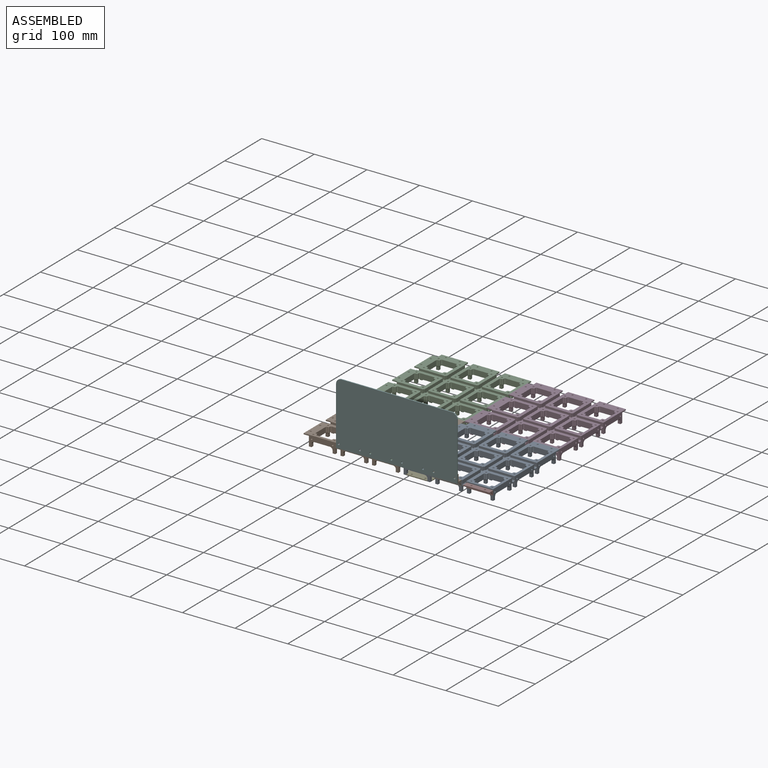
[diagram: assembled view]
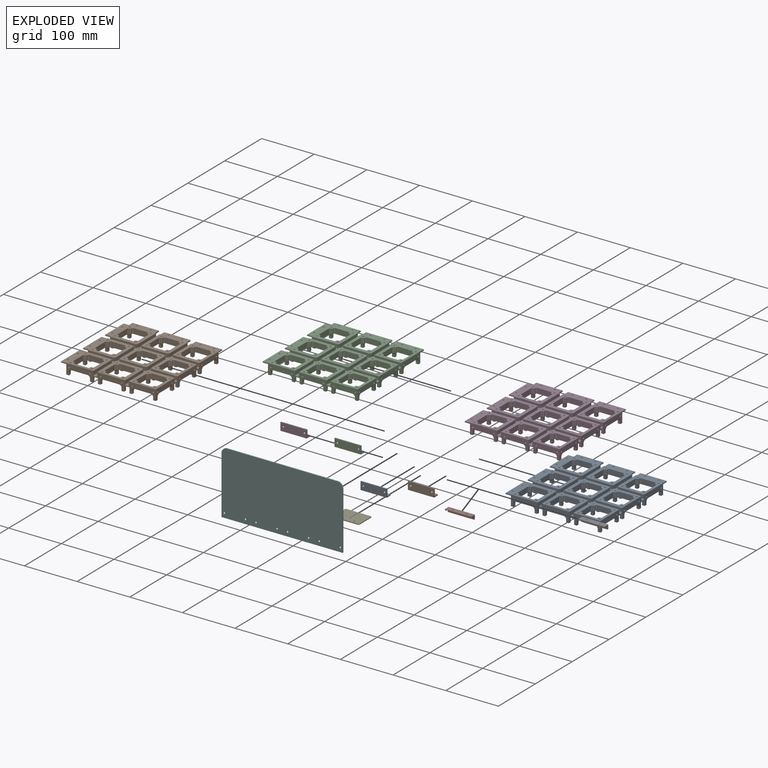
[diagram: exploded view]
GUIDED TOUR — FREECAD ASSEMBLY "BackplaneAssembled"

This assembly has 12 components, labeled P0..P11 below (a component is one placed body or linked part; the same part can appear more than once), held together by 0 modeled joints plus 27 derived contact edges. A joint is a constraint between two components; its type names the relative motion it leaves free:
  CONTACT — a derived adjacency edge — the two components touch in the source model (clearance under 2% of the assembly's diagonal); it is measured from the geometry, not a modeled constraint.
Axis/direction vectors are unit vectors and 'through' points are millimeter coordinates, both in the assembly's world frame.

MATES
  1. CONTACT "contact_0_1": P0 <-> P1, contact direction (1.000, 0.000, 0.000) through (55.00, -10.00, 18.00) mm (derived from contact, not a modeled constraint)
  2. CONTACT "contact_0_2": P0 <-> P2, contact direction (-1.000, 0.000, 0.000) through (-5.00, -10.00, 18.00) mm (derived from contact, not a modeled constraint)
  3. CONTACT "contact_0_5": P0 <-> P5, contact direction (0.000, -1.000, 0.000) through (5.73, -10.00, 24.52) mm (derived from contact, not a modeled constraint)
  4. CONTACT "contact_0_6": P0 <-> P6, contact direction (1.000, 0.000, 0.000) through (55.00, -10.00, 18.00) mm (derived from contact, not a modeled constraint)
  5. CONTACT "contact_0_8": P0 <-> P8, contact direction (0.000, 1.000, 0.000) through (0.00, 0.00, 18.00) mm (derived from contact, not a modeled constraint)
  6. CONTACT "contact_0_9": P0 <-> P9, contact direction (-1.000, 0.000, 0.000) through (-5.00, 0.00, 20.00) mm (derived from contact, not a modeled constraint)
  7. CONTACT "contact_1_5": P1 <-> P5, contact direction (0.000, -1.000, 0.000) through (110.00, -10.00, 18.00) mm (derived from contact, not a modeled constraint)
  8. CONTACT "contact_1_6": P1 <-> P6, contact direction (0.000, 0.000, -1.000) through (110.00, -10.00, 18.00) mm (derived from contact, not a modeled constraint)
  9. CONTACT "contact_1_7": P1 <-> P7, contact direction (1.000, 0.000, 0.000) through (115.00, -10.00, 18.00) mm (derived from contact, not a modeled constraint)
  10. CONTACT "contact_1_8": P1 <-> P8, contact direction (0.000, 1.000, 0.000) through (61.93, 0.00, 16.52) mm (derived from contact, not a modeled constraint)
  11. CONTACT "contact_2_3": P2 <-> P3, contact direction (-1.000, 0.000, 0.000) through (-65.00, -10.00, 18.00) mm (derived from contact, not a modeled constraint)
  12. CONTACT "contact_2_5": P2 <-> P5, contact direction (0.000, -1.000, 0.000) through (-14.27, -10.00, 24.52) mm (derived from contact, not a modeled constraint)
  13. CONTACT "contact_2_8": P2 <-> P8, contact direction (0.000, 0.000, -1.000) through (-10.00, 0.00, 18.00) mm (derived from contact, not a modeled constraint)
  14. CONTACT "contact_2_9": P2 <-> P9, contact direction (-0.334, 0.941, -0.060) through (-10.00, 0.00, 20.00) mm (derived from contact, not a modeled constraint)
  15. CONTACT "contact_3_5": P3 <-> P5, contact direction (0.000, -1.000, 0.000) through (-120.00, -10.00, 18.00) mm (derived from contact, not a modeled constraint)
  16. CONTACT "contact_3_9": P3 <-> P9, contact direction (0.000, 1.000, 0.000) through (-118.07, 0.00, 16.52) mm (derived from contact, not a modeled constraint)
  17. CONTACT "contact_4_8": P4 <-> P8, contact direction (0.000, 1.000, 0.000) through (0.00, 3.50, 3.30) mm (derived from contact, not a modeled constraint)
  18. CONTACT "contact_5_6": P5 <-> P6, contact direction (0.000, 1.000, 0.000) through (110.00, -10.00, 18.00) mm (derived from contact, not a modeled constraint)
  19. CONTACT "contact_5_7": P5 <-> P7, contact direction (1.000, 0.000, 0.000) through (115.00, -10.00, 18.00) mm (derived from contact, not a modeled constraint)
  20. CONTACT "contact_6_7": P6 <-> P7, contact direction (1.000, 0.000, 0.000) through (115.00, 0.00, 10.00) mm (derived from contact, not a modeled constraint)
  21. CONTACT "contact_6_8": P6 <-> P8, contact direction (0.000, 1.000, 0.000) through (66.62, 0.00, 14.00) mm (derived from contact, not a modeled constraint)
  22. CONTACT "contact_7_8": P7 <-> P8, contact direction (-0.334, 0.941, -0.060) through (123.69, 0.00, 13.04) mm (derived from contact, not a modeled constraint)
  23. CONTACT "contact_8_9": P8 <-> P9, contact direction (-1.000, 0.000, 0.000) through (-10.00, 0.00, 19.00) mm (derived from contact, not a modeled constraint)
  24. CONTACT "contact_8_11": P8 <-> P11, contact direction (0.000, 1.000, 0.000) through (50.00, 180.00, 19.00) mm (derived from contact, not a modeled constraint)
  25. CONTACT "contact_9_10": P9 <-> P10, contact direction (0.000, 1.000, 0.000) through (-130.00, 180.00, 19.00) mm (derived from contact, not a modeled constraint)
  26. CONTACT "contact_9_11": P9 <-> P11, contact direction (0.000, 0.000, 1.000) through (-10.00, 175.00, 19.00) mm (derived from contact, not a modeled constraint)
  27. CONTACT "contact_10_11": P10 <-> P11, contact direction (1.000, 0.000, 0.000) through (-10.00, 180.00, 19.00) mm (derived from contact, not a modeled constraint)

ASSEMBLY ORDER
  1. P11 — the base component [order verified]
  2. P8 [order verified]
  3. P6 [order verified]
  4. P1 [order verified]
  5. P0 [order verified]
  6. P7 [order verified]
  7. P2 [order verified]
  8. P3 [order verified]
  9. P10 [order verified]
  10. P9 [order verified]
  11. P4 [order verified]
  12. P5 [order verified]
Order-tag legend:
  [order verified] — this step's position reverses a verified removal order: the component was checked to insert without passing through the ones already placed.

Of the 12 components, 10 carry a construction recipe — the FreeCAD feature program (sketches with constraints, then the solid features that consume them) that regenerates the part from scratch, quoted from this document or from the linked companion document it references; the rest are supplied as boundary geometry only. The tour below walks the components in assembly order: each is shown spotlighted twice — in the assembled view, then in the exploded view, where a leader line traces a displaced component back to its assembled socket (components that stay in place when exploded have no leader line; saturated green if recipe-attached, orange if geometry-only; every other component desaturated gray) — followed by its recipe or geometry summary and the mates that hold it.
NOTE — document 4 of 6 of this assembly tour. The two overview renders and the header above are repeated from document 1; the component sections below continue where the previous document stopped.
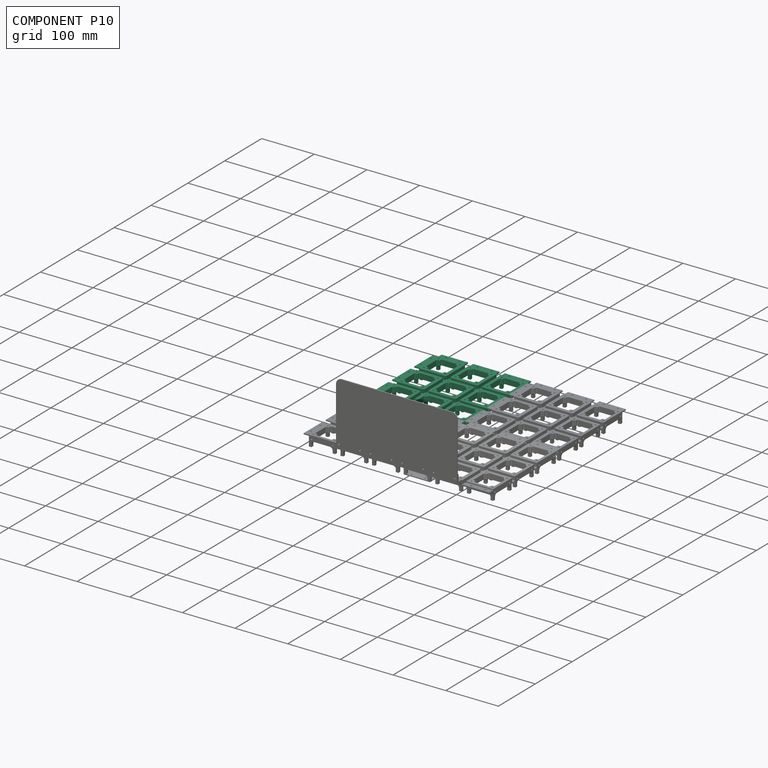
[diagram: component P10 — assembled]
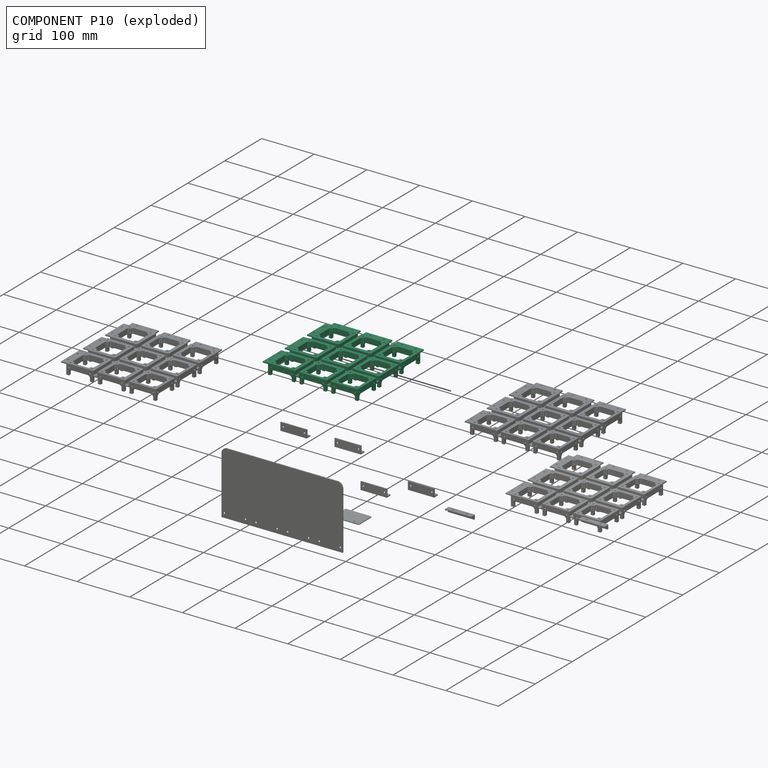
[diagram: component P10 — exploded]
COMPONENT P10 — recipe-attached ("Part002", modeled in this document).
Held by: resting contact with P9 (derived edge); resting contact with P11 (derived edge).
Construction recipe (the document's own serialized feature program — sketch geometry with constraints, then the solid features built on it; lengths are millimeters unless a unit is written):

FEATURE [Sketcher::SketchObject] Sketch121
  FullyConstrained = true
  MapMode = 5
  Placement = pos=(0,0,0) rot=(0.57735,0.57735,0.57735;2.0944rad)
  Support = -> [YZ_Plane023]
  sketch-geometry (4):
    g0: LineSegment StartX=0 StartY=0 StartZ=0 EndX=10 EndY=0 EndZ=0
    g1: LineSegment StartX=10 StartY=0 StartZ=0 EndX=10 EndY=10 EndZ=0
    g2: LineSegment StartX=10 StartY=10 StartZ=0 EndX=0 EndY=10 EndZ=0
    g3: LineSegment StartX=0 StartY=10 StartZ=0 EndX=0 EndY=0 EndZ=0
  constraints (11):
    c: Coincident(g0,g1)
    c: Coincident(g1,g2)
    c: Coincident(g2,g3)
    c: Coincident(g3,g0)
    c: Horizontal(g0)
    c: Horizontal(g2)
    c: Vertical(g1)
    c: Vertical(g3)
    c: Coincident(g0,g-1)
    c: DistanceY(g3,g3) = 10
    c: DistanceX(g2,g2) = 10
FEATURE [PartDesign::Pad] Pad020
  Direction = (1,-2e-16,3e-16)
  Length = 50
  Length2 = 10
  Placement = pos=(0,0,0) rot=(0.57735,0.57735,0.57735;2.0944rad)
  Profile = -> Sketch121
  ReferenceAxis = -> Sketch121 [N_Axis]
  Type = 0
FEATURE [Sketcher::SketchObject] Sketch122
  ExternalGeometry = -> [Pad020]
  FullyConstrained = true
  MapMode = 5
  Placement = pos=(0,0,0) rot=(0.57735,0.57735,-0.57735;4.18879rad)
  Support = -> [Pad020]
  sketch-geometry (6):
    g0: LineSegment StartX=8.5 StartY=-10 StartZ=0 EndX=8.5 EndY=-3.5 EndZ=0
    g1: LineSegment StartX=6.5 StartY=-1.5 StartZ=0 EndX=3.5 EndY=-1.5 EndZ=0
    g2: LineSegment StartX=1.5 StartY=-3.5 StartZ=0 EndX=1.5 EndY=-10 EndZ=0
    g3: ArcOfCircle CenterX=6.5 CenterY=-3.5 CenterZ=0 NormalX=0 NormalY=0 NormalZ=1 AngleXU=0 Radius=2 StartAngle=1e-16 EndAngle=1.5708
    g4: ArcOfCircle CenterX=3.5 CenterY=-3.5 CenterZ=0 NormalX=0 NormalY=0 NormalZ=1 AngleXU=0 Radius=2 StartAngle=1.5708 EndAngle=3.14159
    g5: LineSegment StartX=1.5 StartY=-10 StartZ=0 EndX=8.5 EndY=-10 EndZ=0
  constraints (16):
    c: PointOnObject(g0,g-3)
    c: Vertical(g0)
    c: Horizontal(g1)
    c: PointOnObject(g2,g-3)
    c: Vertical(g2)
    c: Tangent(g0,g3) = -1.5708
    c: Tangent(g1,g3) = -1.5708
    c: Tangent(g1,g4) = -1.5708
    c: Tangent(g2,g4) = -1.5708
    c: Radius(g4) = 2
    c: Radius(g3) = 2
    c: Distance(g2,g-5) = 1.5
    c: Distance(g0,g-4) = 1.5
    c: Distance(g1,g-6) = 1.5
    c: Coincident(g5,g2)
    c: Coincident(g5,g0)
FEATURE [PartDesign::Pocket] Pocket102
  BaseFeature = -> Pad020
  Direction = (1,-4e-16,4e-16)
  Length = 5
  Length2 = 5
  Placement = pos=(0,0,0) rot=(0.57735,0.57735,0.57735;2.0944rad)
  Profile = -> Sketch122
  ReferenceAxis = -> Sketch122 [N_Axis]
  Type = 1
FEATURE [PartDesign::Body] Body021  label="BackplaneChannel024"
  Group = -> [Sketch121,Pad020,Sketch122,Pocket102]
  Origin = -> Origin023
  Placement = pos=(0,50,10) rot=(0,0,1;0rad)
  Tip = -> Pocket102
FEATURE [Sketcher::SketchObject] Sketch123
  FullyConstrained = true
  MapMode = 5
  Support = -> [XY_Plane024]
  sketch-geometry (4):
    g0: LineSegment StartX=-25 StartY=25 StartZ=0 EndX=25 EndY=25 EndZ=0
    g1: LineSegment StartX=25 StartY=25 StartZ=0 EndX=25 EndY=-25 EndZ=0
    g2: LineSegment StartX=25 StartY=-25 StartZ=0 EndX=-25 EndY=-25 EndZ=0
    g3: LineSegment StartX=-25 StartY=-25 StartZ=0 EndX=-25 EndY=25 EndZ=0
  constraints (10):
    c: Coincident(g0,g1)
    c: Coincident(g1,g2)
    c: Coincident(g2,g3)
    c: Coincident(g3,g0)
    c: Horizontal(g0)
    c: Vertical(g3)
    c: Symmetric(g2,g1,g-2)
    c: Symmetric(g1,g0,g-1)
    c: DistanceY(g1,g1) = 50
    c: DistanceX(g2,g2) = 50
FEATURE [PartDesign::Pad] Pad021
  Direction = (0,0,1)
  Length = 20
  Length2 = 10
  Profile = -> Sketch123
  ReferenceAxis = -> Sketch123 [N_Axis]
  Type = 0
FEATURE [Sketcher::SketchObject] Sketch124
  ExternalGeometry = -> [Pad021]
  FullyConstrained = true
  MapMode = 5
  Placement = pos=(0,0,20) rot=(0,0,1;0rad)
  Support = -> [Pad021]
  sketch-geometry (36):
    g0: LineSegment StartX=-18 StartY=15 StartZ=0 EndX=-17 EndY=15 EndZ=0
    g1: LineSegment StartX=20 StartY=13 StartZ=0 EndX=20 EndY=-13 EndZ=0
    g2: LineSegment StartX=18 StartY=-15 StartZ=0 EndX=17 EndY=-15 EndZ=0
    g3: LineSegment StartX=-20 StartY=-13 StartZ=0 EndX=-20 EndY=13 EndZ=0
    g4: LineSegment StartX=-13 StartY=20 StartZ=0 EndX=13 EndY=20 EndZ=0
    g5: LineSegment StartX=15 StartY=18 StartZ=0 EndX=15 EndY=17 EndZ=0
    g6: LineSegment StartX=13 StartY=-20 StartZ=0 EndX=-13 EndY=-20 EndZ=0
    g7: LineSegment StartX=-15 StartY=-18 StartZ=0 EndX=-15 EndY=-17 EndZ=0
    g8: LineSegment StartX=17 StartY=15 StartZ=0 EndX=18 EndY=15 EndZ=0
    g9: LineSegment StartX=-15 StartY=17 StartZ=0 EndX=-15 EndY=18 EndZ=0
    g10: LineSegment StartX=-17 StartY=-15 StartZ=0 EndX=-18 EndY=-15 EndZ=0
    g11: LineSegment StartX=15 StartY=-17 StartZ=0 EndX=15 EndY=-18 EndZ=0
    g12: ArcOfCircle CenterX=-13 CenterY=-18 CenterZ=0 NormalX=0 NormalY=0 NormalZ=1 AngleXU=0 Radius=2 StartAngle=3.14159 EndAngle=4.71239
    g13: GeomPoint X=-15 Y=-20 Z=0
    g14: ArcOfCircle CenterX=13 CenterY=-18 CenterZ=0 NormalX=0 NormalY=0 NormalZ=1 AngleXU=0 Radius=2 StartAngle=4.71239 EndAngle=6.28319
    g15: GeomPoint X=15 Y=-20 Z=0
    g16: ArcOfCircle CenterX=17 CenterY=-17 CenterZ=0 NormalX=0 NormalY=0 NormalZ=1 AngleXU=0 Radius=2 StartAngle=1.5708 EndAngle=3.14159
    g17: GeomPoint X=15 Y=-15 Z=0
    g18: ArcOfCircle CenterX=18 CenterY=-13 CenterZ=0 NormalX=0 NormalY=0 NormalZ=1 AngleXU=0 Radius=2 StartAngle=4.71239 EndAngle=6.28319
    g19: GeomPoint X=20 Y=-15 Z=0
    g20: ArcOfCircle CenterX=18 CenterY=13 CenterZ=0 NormalX=0 NormalY=0 NormalZ=1 AngleXU=0 Radius=2 StartAngle=0 EndAngle=1.5708
    g21: GeomPoint X=20 Y=15 Z=0
    g22: ArcOfCircle CenterX=17 CenterY=17 CenterZ=0 NormalX=0 NormalY=0 NormalZ=1 AngleXU=0 Radius=2 StartAngle=3.14159 EndAngle=4.71239
    g23: GeomPoint X=15 Y=15 Z=0
    g24: ArcOfCircle CenterX=13 CenterY=18 CenterZ=0 NormalX=0 NormalY=0 NormalZ=1 AngleXU=0 Radius=2 StartAngle=4e-16 EndAngle=1.5708
    g25: GeomPoint X=15 Y=20 Z=0
    g26: ArcOfCircle CenterX=-13 CenterY=18 CenterZ=0 NormalX=0 NormalY=0 NormalZ=1 AngleXU=0 Radius=2 StartAngle=1.5708 EndAngle=3.14159
    g27: GeomPoint X=-15 Y=20 Z=0
    g28: ArcOfCircle CenterX=-17 CenterY=17 CenterZ=0 NormalX=0 NormalY=0 NormalZ=1 AngleXU=0 Radius=2 StartAngle=4.71239 EndAngle=6.28319
    g29: GeomPoint X=-15 Y=15 Z=0
    g30: ArcOfCircle CenterX=-18 CenterY=13 CenterZ=0 NormalX=0 NormalY=0 NormalZ=1 AngleXU=0 Radius=2 StartAngle=1.5708 EndAngle=3.14159
    g31: GeomPoint X=-20 Y=15 Z=0
    g32: ArcOfCircle CenterX=-18 CenterY=-13 CenterZ=0 NormalX=0 NormalY=0 NormalZ=1 AngleXU=0 Radius=2 StartAngle=3.14159 EndAngle=4.71239
    g33: GeomPoint X=-20 Y=-15 Z=0
    g34: ArcOfCircle CenterX=-17 CenterY=-17 CenterZ=0 NormalX=0 NormalY=0 NormalZ=1 AngleXU=0 Radius=2 StartAngle=0 EndAngle=1.5708
    g35: GeomPoint X=-15 Y=-15 Z=0
  constraints (80):
    c: Horizontal(g2)
    c: Vertical(g3)
    c: Symmetric(g21,g31,g-2)
    c: Symmetric(g21,g19,g-1)
    c: DistanceX(g31,g21) = 40
    c: DistanceY(g19,g21) = 30
    c: Horizontal(g4)
    c: Vertical(g7)
    c: Symmetric(g13,g15,g-2)
    c: Symmetric(g15,g25,g-1)
    c: DistanceY(g15,g25) = 40
    c: Vertical(g9)
    c: Vertical(g5)
    c: Vertical(g11)
    c: Horizontal(g10)
    c: Horizontal(g8)
    c: Horizontal(g0)
    c: DistanceX(g13,g15) = 30
    c: DistanceY(g33,g31) = 30
    c: DistanceX(g27,g25) = 30
    c: PointOnObject(g13,g7)
    c: PointOnObject(g13,g6)
    c: Tangent(g7,g12) = 1.5708
    c: Tangent(g6,g12) = 1.5708
    c: Radius(g12) = 2
    c: PointOnObject(g15,g11)
    c: PointOnObject(g15,g6)
    c: Tangent(g11,g14) = 1.5708
    c: Tangent(g6,g14) = 1.5708
    c: PointOnObject(g17,g11)
    c: PointOnObject(g17,g2)
    c: Tangent(g11,g16) = -1.5708
    c: Tangent(g2,g16) = -1.5708
    c: PointOnObject(g19,g2)
    c: PointOnObject(g19,g1)
    c: Tangent(g2,g18) = 1.5708
    c: Tangent(g1,g18) = 1.5708
    c: PointOnObject(g21,g1)
    c: PointOnObject(g21,g8)
    c: Tangent(g1,g20) = 1.5708
    c: Tangent(g8,g20) = 1.5708
    c: PointOnObject(g23,g8)
    c: PointOnObject(g23,g5)
    c: Tangent(g8,g22) = -1.5708
    c: Tangent(g5,g22) = -1.5708
    c: PointOnObject(g25,g5)
    c: PointOnObject(g25,g4)
    c: Tangent(g5,g24) = 1.5708
    c: Tangent(g4,g24) = 1.5708
    c: PointOnObject(g27,g9)
    c: PointOnObject(g27,g4)
    c: Tangent(g9,g26) = 1.5708
    c: Tangent(g4,g26) = 1.5708
    c: PointOnObject(g29,g9)
    c: PointOnObject(g29,g0)
    c: Tangent(g9,g28) = -1.5708
    c: Tangent(g0,g28) = -1.5708
    c: PointOnObject(g31,g0)
    c: PointOnObject(g31,g3)
    c: Tangent(g0,g30) = 1.5708
    c: Tangent(g3,g30) = 1.5708
    c: PointOnObject(g33,g3)
    c: PointOnObject(g33,g10)
    c: Tangent(g3,g32) = 1.5708
    c: Tangent(g10,g32) = 1.5708
    c: PointOnObject(g35,g10)
    c: PointOnObject(g35,g7)
    c: Tangent(g10,g34) = -1.5708
    c: Tangent(g7,g34) = -1.5708
    c: Radius(g34) = 2
    c: Radius(g32) = 2
    c: Radius(g30) = 2
    c: Radius(g28) = 2
    c: Radius(g26) = 2
    c: Radius(g24) = 2
    c: Radius(g22) = 2
    c: Radius(g20) = 2
    c: Radius(g18) = 2
    c: Radius(g16) = 2
    c: Radius(g14) = 2
FEATURE [PartDesign::Pocket] Pocket103
  BaseFeature = -> Pad021
  Direction = (0,0,-1)
  Length = 5
  Length2 = 5
  Profile = -> Sketch124
  ReferenceAxis = -> Sketch124 [N_Axis]
  Type = 1
FEATURE [Sketcher::SketchObject] Sketch125
  ExternalGeometry = -> [Pocket103]
  FullyConstrained = true
  MapMode = 5
  Placement = pos=(25,0,0) rot=(0.57735,0.57735,0.57735;2.0944rad)
  Support = -> [Pocket103]
  sketch-geometry (6):
    g0: LineSegment StartX=-15 StartY=10 StartZ=0 EndX=15 EndY=10 EndZ=0
    g1: LineSegment StartX=20 StartY=5 StartZ=0 EndX=20 EndY=0 EndZ=0
    g2: LineSegment StartX=20 StartY=0 StartZ=0 EndX=-20 EndY=0 EndZ=0
    g3: LineSegment StartX=-20 StartY=0 StartZ=0 EndX=-20 EndY=5 EndZ=0
    g4: ArcOfCircle CenterX=15 CenterY=5 CenterZ=0 NormalX=0 NormalY=0 NormalZ=1 AngleXU=0 Radius=5 StartAngle=1.11001e-11 EndAngle=1.5708
    g5: ArcOfCircle CenterX=-15 CenterY=5 CenterZ=0 NormalX=0 NormalY=0 NormalZ=1 AngleXU=0 Radius=5 StartAngle=1.5708 EndAngle=3.14159
  constraints (15):
    c: Coincident(g1,g2)
    c: Coincident(g2,g3)
    c: Vertical(g1)
    c: Vertical(g3)
    c: PointOnObject(g1,g-1)
    c: Tangent(g1,g4) = 1.5708
    c: Tangent(g0,g4) = 1.5708
    c: Tangent(g0,g5) = 1.5708
    c: Tangent(g3,g5) = 1.5708
    c: Horizontal(g0)
    c: DistanceX(g2,g2) = 40
    c: Symmetric(g2,g1,g-2)
    c: Distance(g-1,g0) = 10
    c: Radius(g5) = 5
    c: Radius(g4) = 5
FEATURE [PartDesign::Pocket] Pocket104
  BaseFeature = -> Pocket103
  Direction = (-1,0,0)
  Length = 5
  Length2 = 5
  Profile = -> Sketch125
  ReferenceAxis = -> Sketch125 [N_Axis]
  Type = 1
FEATURE [Sketcher::SketchObject] Sketch126
  FullyConstrained = true
  MapMode = 5
  Placement = pos=(0,-25,0) rot=(1,0,0;1.5708rad)
  Support = -> [Pocket103]
  sketch-geometry (6):
    g0: LineSegment StartX=-15 StartY=10 StartZ=0 EndX=15 EndY=10 EndZ=0
    g1: LineSegment StartX=20 StartY=5 StartZ=0 EndX=20 EndY=0 EndZ=0
    g2: LineSegment StartX=20 StartY=0 StartZ=0 EndX=-20 EndY=0 EndZ=0
    g3: LineSegment StartX=-20 StartY=0 StartZ=0 EndX=-20 EndY=5 EndZ=0
    g4: ArcOfCircle CenterX=15 CenterY=5 CenterZ=0 NormalX=0 NormalY=0 NormalZ=1 AngleXU=0 Radius=5 StartAngle=1.11e-11 EndAngle=1.5708
    g5: ArcOfCircle CenterX=-15 CenterY=5 CenterZ=0 NormalX=0 NormalY=0 NormalZ=1 AngleXU=0 Radius=5 StartAngle=1.5708 EndAngle=3.14159
  constraints (15):
    c: Coincident(g1,g2)
    c: Coincident(g2,g3)
    c: Horizontal(g0)
    c: Vertical(g1)
    c: Vertical(g3)
    c: Symmetric(g2,g1,g-2)
    c: PointOnObject(g1,g-1)
    c: Tangent(g0,g4) = 1.5708
    c: Tangent(g1,g4) = 1.5708
    c: Tangent(g0,g5) = 1.5708
    c: Tangent(g3,g5) = 1.5708
    c: DistanceX(g2,g2) = 40
    c: Distance(g-1,g0) = 10
    c: Radius(g5) = 5
    c: Radius(g4) = 5
FEATURE [PartDesign::Pocket] Pocket105
  BaseFeature = -> Pocket104
  Direction = (0,1,-2e-16)
  Length = 5
  Length2 = 5
  Profile = -> Sketch126
  ReferenceAxis = -> Sketch126 [N_Axis]
  Type = 1
FEATURE [Sketcher::SketchObject] Sketch127
  FullyConstrained = false
  MapMode = 5
  Placement = pos=(0,0,20) rot=(0,0,1;0rad)
  sketch-geometry (4):
    g0: Circle CenterX=-20 CenterY=20 CenterZ=0 NormalX=0 NormalY=0 NormalZ=1 AngleXU=0 Radius=1.55
    g1: Circle CenterX=20 CenterY=20 CenterZ=0 NormalX=0 NormalY=0 NormalZ=1 AngleXU=0 Radius=1.55
    g2: Circle CenterX=20 CenterY=-20 CenterZ=0 NormalX=0 NormalY=0 NormalZ=1 AngleXU=0 Radius=1.55
    g3: Circle CenterX=-20 CenterY=-20 CenterZ=0 NormalX=0 NormalY=0 NormalZ=1 AngleXU=0 Radius=1.55
  constraints (4):
    c: Diameter(g0) = 3.1
    c: Diameter(g1) = 3.1
    c: Diameter(g2) = 3.1
    c: Diameter(g3) = 3.1
FEATURE [PartDesign::Pocket] Pocket106
  BaseFeature = -> Pocket105
  Direction = (0,0,-1)
  Length = 5
  Length2 = 5
  Profile = -> Sketch127
  ReferenceAxis = -> Sketch127 [N_Axis]
  Type = 0
FEATURE [Sketcher::SketchObject] Sketch128
  FullyConstrained = true
  MapMode = 5
  Support = -> [XY_Plane025]
  sketch-geometry (4):
    g0: LineSegment StartX=-25 StartY=25 StartZ=0 EndX=25 EndY=25 EndZ=0
    g1: LineSegment StartX=25 StartY=25 StartZ=0 EndX=25 EndY=-25 EndZ=0
    g2: LineSegment StartX=25 StartY=-25 StartZ=0 EndX=-25 EndY=-25 EndZ=0
    g3: LineSegment StartX=-25 StartY=-25 StartZ=0 EndX=-25 EndY=25 EndZ=0
  constraints (10):
    c: Coincident(g0,g1)
    c: Coincident(g1,g2)
    c: Coincident(g2,g3)
    c: Coincident(g3,g0)
    c: Horizontal(g0)
    c: Vertical(g3)
    c: Symmetric(g2,g1,g-2)
    c: Symmetric(g1,g0,g-1)
    c: DistanceY(g1,g1) = 50
    c: DistanceX(g2,g2) = 50
FEATURE [PartDesign::Pad] Pad022
  Direction = (0,0,1)
  Length = 20
  Length2 = 10
  Profile = -> Sketch128
  ReferenceAxis = -> Sketch128 [N_Axis]
  Type = 0
FEATURE [Sketcher::SketchObject] Sketch129
  ExternalGeometry = -> [Pad022]
  FullyConstrained = true
  MapMode = 5
  Placement = pos=(0,0,20) rot=(0,0,1;0rad)
  Support = -> [Pad022]
  sketch-geometry (36):
    g0: LineSegment StartX=-18 StartY=15 StartZ=0 EndX=-17 EndY=15 EndZ=0
    g1: LineSegment StartX=20 StartY=13 StartZ=0 EndX=20 EndY=-13 EndZ=0
    g2: LineSegment StartX=18 StartY=-15 StartZ=0 EndX=17 EndY=-15 EndZ=0
    g3: LineSegment StartX=-20 StartY=-13 StartZ=0 EndX=-20 EndY=13 EndZ=0
    g4: LineSegment StartX=-13 StartY=20 StartZ=0 EndX=13 EndY=20 EndZ=0
    g5: LineSegment StartX=15 StartY=18 StartZ=0 EndX=15 EndY=17 EndZ=0
    g6: LineSegment StartX=13 StartY=-20 StartZ=0 EndX=-13 EndY=-20 EndZ=0
    g7: LineSegment StartX=-15 StartY=-18 StartZ=0 EndX=-15 EndY=-17 EndZ=0
    g8: LineSegment StartX=17 StartY=15 StartZ=0 EndX=18 EndY=15 EndZ=0
    g9: LineSegment StartX=-15 StartY=17 StartZ=0 EndX=-15 EndY=18 EndZ=0
    g10: LineSegment StartX=-17 StartY=-15 StartZ=0 EndX=-18 EndY=-15 EndZ=0
    g11: LineSegment StartX=15 StartY=-17 StartZ=0 EndX=15 EndY=-18 EndZ=0
    g12: ArcOfCircle CenterX=-13 CenterY=-18 CenterZ=0 NormalX=0 NormalY=0 NormalZ=1 AngleXU=0 Radius=2 StartAngle=3.14159 EndAngle=4.71239
    g13: GeomPoint X=-15 Y=-20 Z=0
    g14: ArcOfCircle CenterX=13 CenterY=-18 CenterZ=0 NormalX=0 NormalY=0 NormalZ=1 AngleXU=0 Radius=2 StartAngle=4.71239 EndAngle=6.28319
    g15: GeomPoint X=15 Y=-20 Z=0
    g16: ArcOfCircle CenterX=17 CenterY=-17 CenterZ=0 NormalX=0 NormalY=0 NormalZ=1 AngleXU=0 Radius=2 StartAngle=1.5708 EndAngle=3.14159
    g17: GeomPoint X=15 Y=-15 Z=0
    g18: ArcOfCircle CenterX=18 CenterY=-13 CenterZ=0 NormalX=0 NormalY=0 NormalZ=1 AngleXU=0 Radius=2 StartAngle=4.71239 EndAngle=6.28319
    g19: GeomPoint X=20 Y=-15 Z=0
    g20: ArcOfCircle CenterX=18 CenterY=13 CenterZ=0 NormalX=0 NormalY=0 NormalZ=1 AngleXU=0 Radius=2 StartAngle=0 EndAngle=1.5708
    g21: GeomPoint X=20 Y=15 Z=0
    g22: ArcOfCircle CenterX=17 CenterY=17 CenterZ=0 NormalX=0 NormalY=0 NormalZ=1 AngleXU=0 Radius=2 StartAngle=3.14159 EndAngle=4.71239
    g23: GeomPoint X=15 Y=15 Z=0
    g24: ArcOfCircle CenterX=13 CenterY=18 CenterZ=0 NormalX=0 NormalY=0 NormalZ=1 AngleXU=0 Radius=2 StartAngle=4e-16 EndAngle=1.5708
    g25: GeomPoint X=15 Y=20 Z=0
    g26: ArcOfCircle CenterX=-13 CenterY=18 CenterZ=0 NormalX=0 NormalY=0 NormalZ=1 AngleXU=0 Radius=2 StartAngle=1.5708 EndAngle=3.14159
    g27: GeomPoint X=-15 Y=20 Z=0
    g28: ArcOfCircle CenterX=-17 CenterY=17 CenterZ=0 NormalX=0 NormalY=0 NormalZ=1 AngleXU=0 Radius=2 StartAngle=4.71239 EndAngle=6.28319
    g29: GeomPoint X=-15 Y=15 Z=0
    g30: ArcOfCircle CenterX=-18 CenterY=13 CenterZ=0 NormalX=0 NormalY=0 NormalZ=1 AngleXU=0 Radius=2 StartAngle=1.5708 EndAngle=3.14159
    g31: GeomPoint X=-20 Y=15 Z=0
    g32: ArcOfCircle CenterX=-18 CenterY=-13 CenterZ=0 NormalX=0 NormalY=0 NormalZ=1 AngleXU=0 Radius=2 StartAngle=3.14159 EndAngle=4.71239
    g33: GeomPoint X=-20 Y=-15 Z=0
    g34: ArcOfCircle CenterX=-17 CenterY=-17 CenterZ=0 NormalX=0 NormalY=0 NormalZ=1 AngleXU=0 Radius=2 StartAngle=0 EndAngle=1.5708
    g35: GeomPoint X=-15 Y=-15 Z=0
  constraints (80):
    c: Horizontal(g2)
    c: Vertical(g3)
    c: Symmetric(g21,g31,g-2)
    c: Symmetric(g21,g19,g-1)
    c: DistanceX(g31,g21) = 40
    c: DistanceY(g19,g21) = 30
    c: Horizontal(g4)
    c: Vertical(g7)
    c: Symmetric(g13,g15,g-2)
    c: Symmetric(g15,g25,g-1)
    c: DistanceY(g15,g25) = 40
    c: Vertical(g9)
    c: Vertical(g5)
    c: Vertical(g11)
    c: Horizontal(g10)
    c: Horizontal(g8)
    c: Horizontal(g0)
    c: DistanceX(g13,g15) = 30
    c: DistanceY(g33,g31) = 30
    c: DistanceX(g27,g25) = 30
    c: PointOnObject(g13,g7)
    c: PointOnObject(g13,g6)
    c: Tangent(g7,g12) = 1.5708
    c: Tangent(g6,g12) = 1.5708
    c: Radius(g12) = 2
    c: PointOnObject(g15,g11)
    c: PointOnObject(g15,g6)
    c: Tangent(g11,g14) = 1.5708
    c: Tangent(g6,g14) = 1.5708
    c: PointOnObject(g17,g11)
    c: PointOnObject(g17,g2)
    c: Tangent(g11,g16) = -1.5708
    c: Tangent(g2,g16) = -1.5708
    c: PointOnObject(g19,g2)
    c: PointOnObject(g19,g1)
    c: Tangent(g2,g18) = 1.5708
    c: Tangent(g1,g18) = 1.5708
    c: PointOnObject(g21,g1)
    c: PointOnObject(g21,g8)
    c: Tangent(g1,g20) = 1.5708
    c: Tangent(g8,g20) = 1.5708
    c: PointOnObject(g23,g8)
    c: PointOnObject(g23,g5)
    c: Tangent(g8,g22) = -1.5708
    c: Tangent(g5,g22) = -1.5708
    c: PointOnObject(g25,g5)
    c: PointOnObject(g25,g4)
    c: Tangent(g5,g24) = 1.5708
    c: Tangent(g4,g24) = 1.5708
    c: PointOnObject(g27,g9)
    c: PointOnObject(g27,g4)
    c: Tangent(g9,g26) = 1.5708
    c: Tangent(g4,g26) = 1.5708
    c: PointOnObject(g29,g9)
    c: PointOnObject(g29,g0)
    c: Tangent(g9,g28) = -1.5708
    c: Tangent(g0,g28) = -1.5708
    c: PointOnObject(g31,g0)
    c: PointOnObject(g31,g3)
    c: Tangent(g0,g30) = 1.5708
    c: Tangent(g3,g30) = 1.5708
    c: PointOnObject(g33,g3)
    c: PointOnObject(g33,g10)
    c: Tangent(g3,g32) = 1.5708
    c: Tangent(g10,g32) = 1.5708
    c: PointOnObject(g35,g10)
    c: PointOnObject(g35,g7)
    c: Tangent(g10,g34) = -1.5708
    c: Tangent(g7,g34) = -1.5708
    c: Radius(g34) = 2
    c: Radius(g32) = 2
    c: Radius(g30) = 2
    c: Radius(g28) = 2
    c: Radius(g26) = 2
    c: Radius(g24) = 2
    c: Radius(g22) = 2
    c: Radius(g20) = 2
    c: Radius(g18) = 2
    c: Radius(g16) = 2
    c: Radius(g14) = 2
FEATURE [PartDesign::Pocket] Pocket107
  BaseFeature = -> Pad022
  Direction = (0,0,-1)
  Length = 5
  Length2 = 5
  Profile = -> Sketch129
  ReferenceAxis = -> Sketch129 [N_Axis]
  Type = 1
FEATURE [Sketcher::SketchObject] Sketch130
  ExternalGeometry = -> [Pocket107]
  FullyConstrained = true
  MapMode = 5
  Placement = pos=(25,0,0) rot=(0.57735,0.57735,0.57735;2.0944rad)
  Support = -> [Pocket107]
  sketch-geometry (6):
    g0: LineSegment StartX=-15 StartY=10 StartZ=0 EndX=15 EndY=10 EndZ=0
    g1: LineSegment StartX=20 StartY=5 StartZ=0 EndX=20 EndY=0 EndZ=0
    g2: LineSegment StartX=20 StartY=0 StartZ=0 EndX=-20 EndY=0 EndZ=0
    g3: LineSegment StartX=-20 StartY=0 StartZ=0 EndX=-20 EndY=5 EndZ=0
    g4: ArcOfCircle CenterX=15 CenterY=5 CenterZ=0 NormalX=0 NormalY=0 NormalZ=1 AngleXU=0 Radius=5 StartAngle=1.11001e-11 EndAngle=1.5708
    g5: ArcOfCircle CenterX=-15 CenterY=5 CenterZ=0 NormalX=0 NormalY=0 NormalZ=1 AngleXU=0 Radius=5 StartAngle=1.5708 EndAngle=3.14159
  constraints (15):
    c: Coincident(g1,g2)
    c: Coincident(g2,g3)
    c: Vertical(g1)
    c: Vertical(g3)
    c: PointOnObject(g1,g-1)
    c: Tangent(g1,g4) = 1.5708
    c: Tangent(g0,g4) = 1.5708
    c: Tangent(g0,g5) = 1.5708
    c: Tangent(g3,g5) = 1.5708
    c: Horizontal(g0)
    c: DistanceX(g2,g2) = 40
    c: Symmetric(g2,g1,g-2)
    c: Distance(g-1,g0) = 10
    c: Radius(g5) = 5
    c: Radius(g4) = 5
FEATURE [PartDesign::Pocket] Pocket108
  BaseFeature = -> Pocket107
  Direction = (-1,0,0)
  Length = 5
  Length2 = 5
  Profile = -> Sketch130
  ReferenceAxis = -> Sketch130 [N_Axis]
  Type = 1
FEATURE [Sketcher::SketchObject] Sketch131
  FullyConstrained = true
  MapMode = 5
  Placement = pos=(0,-25,0) rot=(1,0,0;1.5708rad)
  Support = -> [Pocket107]
  sketch-geometry (6):
    g0: LineSegment StartX=-15 StartY=10 StartZ=0 EndX=15 EndY=10 EndZ=0
    g1: LineSegment StartX=20 StartY=5 StartZ=0 EndX=20 EndY=0 EndZ=0
    g2: LineSegment StartX=20 StartY=0 StartZ=0 EndX=-20 EndY=0 EndZ=0
    g3: LineSegment StartX=-20 StartY=0 StartZ=0 EndX=-20 EndY=5 EndZ=0
    g4: ArcOfCircle CenterX=15 CenterY=5 CenterZ=0 NormalX=0 NormalY=0 NormalZ=1 AngleXU=0 Radius=5 StartAngle=1.11e-11 EndAngle=1.5708
    g5: ArcOfCircle CenterX=-15 CenterY=5 CenterZ=0 NormalX=0 NormalY=0 NormalZ=1 AngleXU=0 Radius=5 StartAngle=1.5708 EndAngle=3.14159
  constraints (15):
    c: Coincident(g1,g2)
    c: Coincident(g2,g3)
    c: Horizontal(g0)
    c: Vertical(g1)
    c: Vertical(g3)
    c: Symmetric(g2,g1,g-2)
    c: PointOnObject(g1,g-1)
    c: Tangent(g0,g4) = 1.5708
    c: Tangent(g1,g4) = 1.5708
    c: Tangent(g0,g5) = 1.5708
    c: Tangent(g3,g5) = 1.5708
    c: DistanceX(g2,g2) = 40
    c: Distance(g-1,g0) = 10
    c: Radius(g5) = 5
    c: Radius(g4) = 5
FEATURE [PartDesign::Pocket] Pocket109
  BaseFeature = -> Pocket108
  Direction = (0,1,-2e-16)
  Length = 5
  Length2 = 5
  Profile = -> Sketch131
  ReferenceAxis = -> Sketch131 [N_Axis]
  Type = 1
FEATURE [Sketcher::SketchObject] Sketch132
  FullyConstrained = false
  MapMode = 5
  Placement = pos=(0,0,20) rot=(0,0,1;0rad)
  sketch-geometry (4):
    g0: Circle CenterX=-20 CenterY=20 CenterZ=0 NormalX=0 NormalY=0 NormalZ=1 AngleXU=0 Radius=1.55
    g1: Circle CenterX=20 CenterY=20 CenterZ=0 NormalX=0 NormalY=0 NormalZ=1 AngleXU=0 Radius=1.55
    g2: Circle CenterX=20 CenterY=-20 CenterZ=0 NormalX=0 NormalY=0 NormalZ=1 AngleXU=0 Radius=1.55
    g3: Circle CenterX=-20 CenterY=-20 CenterZ=0 NormalX=0 NormalY=0 NormalZ=1 AngleXU=0 Radius=1.55
  constraints (4):
    c: Diameter(g0) = 3.1
    c: Diameter(g1) = 3.1
    c: Diameter(g2) = 3.1
    c: Diameter(g3) = 3.1
FEATURE [PartDesign::Pocket] Pocket110
  BaseFeature = -> Pocket109
  Direction = (0,0,-1)
  Length = 5
  Length2 = 5
  Profile = -> Sketch132
  ReferenceAxis = -> Sketch132 [N_Axis]
  Type = 0
FEATURE [PartDesign::Body] Body023  label="BackplaneBlock019"
  Group = -> [Sketch128,Pad022,Sketch129,Pocket107,Sketch130,Sketch131,Pocket108,Pocket109,Sketch132,Pocket110]
  Origin = -> Origin025
  Placement = pos=(85,85,0) rot=(0,0,1;0rad)
  Tip = -> Pocket110
FEATURE [Sketcher::SketchObject] Sketch133
  ExternalGeometry = -> [Pocket106]
  FullyConstrained = true
  MapMode = 5
  Placement = pos=(0,-25,0) rot=(1,0,0;1.5708rad)
  Support = -> [Pocket106]
  sketch-geometry (2):
    g0: Circle CenterX=-20 CenterY=14 CenterZ=0 NormalX=0 NormalY=0 NormalZ=1 AngleXU=0 Radius=1.55
    g1: Circle CenterX=20 CenterY=14 CenterZ=0 NormalX=0 NormalY=0 NormalZ=1 AngleXU=0 Radius=1.55
  constraints (6):
    c: Diameter(g0) = 3.1
    c: Diameter(g1) = 3.1
    c: Distance(g0,g-5) = 5
    c: Distance(g0,g-3) = 6
    c: Distance(g1,g-3) = 6
    c: Distance(g1,g-4) = 5
FEATURE [PartDesign::Pocket] Pocket111
  BaseFeature = -> Pocket106
  Direction = (0,1,-2e-16)
  Length = 3
  Length2 = 5
  Profile = -> Sketch133
  ReferenceAxis = -> Sketch133 [N_Axis]
  Type = 0
FEATURE [Sketcher::SketchObject] Sketch134
  FullyConstrained = true
  MapMode = 5
  Support = -> [XY_Plane026]
  sketch-geometry (4):
    g0: LineSegment StartX=-25 StartY=25 StartZ=0 EndX=25 EndY=25 EndZ=0
    g1: LineSegment StartX=25 StartY=25 StartZ=0 EndX=25 EndY=-25 EndZ=0
    g2: LineSegment StartX=25 StartY=-25 StartZ=0 EndX=-25 EndY=-25 EndZ=0
    g3: LineSegment StartX=-25 StartY=-25 StartZ=0 EndX=-25 EndY=25 EndZ=0
  constraints (10):
    c: Coincident(g0,g1)
    c: Coincident(g1,g2)
    c: Coincident(g2,g3)
    c: Coincident(g3,g0)
    c: Horizontal(g0)
    c: Vertical(g3)
    c: Symmetric(g2,g1,g-2)
    c: Symmetric(g1,g0,g-1)
    c: DistanceY(g1,g1) = 50
    c: DistanceX(g2,g2) = 50
FEATURE [PartDesign::Pad] Pad023
  Direction = (0,0,1)
  Length = 20
  Length2 = 10
  Profile = -> Sketch134
  ReferenceAxis = -> Sketch134 [N_Axis]
  Type = 0
FEATURE [Sketcher::SketchObject] Sketch135
  ExternalGeometry = -> [Pad023]
  FullyConstrained = true
  MapMode = 5
  Placement = pos=(0,0,20) rot=(0,0,1;0rad)
  Support = -> [Pad023]
  sketch-geometry (36):
    g0: LineSegment StartX=-18 StartY=15 StartZ=0 EndX=-17 EndY=15 EndZ=0
    g1: LineSegment StartX=20 StartY=13 StartZ=0 EndX=20 EndY=-13 EndZ=0
    g2: LineSegment StartX=18 StartY=-15 StartZ=0 EndX=17 EndY=-15 EndZ=0
    g3: LineSegment StartX=-20 StartY=-13 StartZ=0 EndX=-20 EndY=13 EndZ=0
    g4: LineSegment StartX=-13 StartY=20 StartZ=0 EndX=13 EndY=20 EndZ=0
    g5: LineSegment StartX=15 StartY=18 StartZ=0 EndX=15 EndY=17 EndZ=0
    g6: LineSegment StartX=13 StartY=-20 StartZ=0 EndX=-13 EndY=-20 EndZ=0
    g7: LineSegment StartX=-15 StartY=-18 StartZ=0 EndX=-15 EndY=-17 EndZ=0
    g8: LineSegment StartX=17 StartY=15 StartZ=0 EndX=18 EndY=15 EndZ=0
    g9: LineSegment StartX=-15 StartY=17 StartZ=0 EndX=-15 EndY=18 EndZ=0
    g10: LineSegment StartX=-17 StartY=-15 StartZ=0 EndX=-18 EndY=-15 EndZ=0
    g11: LineSegment StartX=15 StartY=-17 StartZ=0 EndX=15 EndY=-18 EndZ=0
    g12: ArcOfCircle CenterX=-13 CenterY=-18 CenterZ=0 NormalX=0 NormalY=0 NormalZ=1 AngleXU=0 Radius=2 StartAngle=3.14159 EndAngle=4.71239
    g13: GeomPoint X=-15 Y=-20 Z=0
    g14: ArcOfCircle CenterX=13 CenterY=-18 CenterZ=0 NormalX=0 NormalY=0 NormalZ=1 AngleXU=0 Radius=2 StartAngle=4.71239 EndAngle=6.28319
    g15: GeomPoint X=15 Y=-20 Z=0
    g16: ArcOfCircle CenterX=17 CenterY=-17 CenterZ=0 NormalX=0 NormalY=0 NormalZ=1 AngleXU=0 Radius=2 StartAngle=1.5708 EndAngle=3.14159
    g17: GeomPoint X=15 Y=-15 Z=0
    g18: ArcOfCircle CenterX=18 CenterY=-13 CenterZ=0 NormalX=0 NormalY=0 NormalZ=1 AngleXU=0 Radius=2 StartAngle=4.71239 EndAngle=6.28319
    g19: GeomPoint X=20 Y=-15 Z=0
    g20: ArcOfCircle CenterX=18 CenterY=13 CenterZ=0 NormalX=0 NormalY=0 NormalZ=1 AngleXU=0 Radius=2 StartAngle=0 EndAngle=1.5708
    g21: GeomPoint X=20 Y=15 Z=0
    g22: ArcOfCircle CenterX=17 CenterY=17 CenterZ=0 NormalX=0 NormalY=0 NormalZ=1 AngleXU=0 Radius=2 StartAngle=3.14159 EndAngle=4.71239
    g23: GeomPoint X=15 Y=15 Z=0
    g24: ArcOfCircle CenterX=13 CenterY=18 CenterZ=0 NormalX=0 NormalY=0 NormalZ=1 AngleXU=0 Radius=2 StartAngle=4e-16 EndAngle=1.5708
    g25: GeomPoint X=15 Y=20 Z=0
    g26: ArcOfCircle CenterX=-13 CenterY=18 CenterZ=0 NormalX=0 NormalY=0 NormalZ=1 AngleXU=0 Radius=2 StartAngle=1.5708 EndAngle=3.14159
    g27: GeomPoint X=-15 Y=20 Z=0
    g28: ArcOfCircle CenterX=-17 CenterY=17 CenterZ=0 NormalX=0 NormalY=0 NormalZ=1 AngleXU=0 Radius=2 StartAngle=4.71239 EndAngle=6.28319
    g29: GeomPoint X=-15 Y=15 Z=0
    g30: ArcOfCircle CenterX=-18 CenterY=13 CenterZ=0 NormalX=0 NormalY=0 NormalZ=1 AngleXU=0 Radius=2 StartAngle=1.5708 EndAngle=3.14159
    g31: GeomPoint X=-20 Y=15 Z=0
    g32: ArcOfCircle CenterX=-18 CenterY=-13 CenterZ=0 NormalX=0 NormalY=0 NormalZ=1 AngleXU=0 Radius=2 StartAngle=3.14159 EndAngle=4.71239
    g33: GeomPoint X=-20 Y=-15 Z=0
    g34: ArcOfCircle CenterX=-17 CenterY=-17 CenterZ=0 NormalX=0 NormalY=0 NormalZ=1 AngleXU=0 Radius=2 StartAngle=0 EndAngle=1.5708
    g35: GeomPoint X=-15 Y=-15 Z=0
  constraints (80):
    c: Horizontal(g2)
    c: Vertical(g3)
    c: Symmetric(g21,g31,g-2)
    c: Symmetric(g21,g19,g-1)
    c: DistanceX(g31,g21) = 40
    c: DistanceY(g19,g21) = 30
    c: Horizontal(g4)
    c: Vertical(g7)
    c: Symmetric(g13,g15,g-2)
    c: Symmetric(g15,g25,g-1)
    c: DistanceY(g15,g25) = 40
    c: Vertical(g9)
    c: Vertical(g5)
    c: Vertical(g11)
    c: Horizontal(g10)
    c: Horizontal(g8)
    c: Horizontal(g0)
    c: DistanceX(g13,g15) = 30
    c: DistanceY(g33,g31) = 30
    c: DistanceX(g27,g25) = 30
    c: PointOnObject(g13,g7)
    c: PointOnObject(g13,g6)
    c: Tangent(g7,g12) = 1.5708
    c: Tangent(g6,g12) = 1.5708
    c: Radius(g12) = 2
    c: PointOnObject(g15,g11)
    c: PointOnObject(g15,g6)
    c: Tangent(g11,g14) = 1.5708
    c: Tangent(g6,g14) = 1.5708
    c: PointOnObject(g17,g11)
    c: PointOnObject(g17,g2)
    c: Tangent(g11,g16) = -1.5708
    c: Tangent(g2,g16) = -1.5708
    c: PointOnObject(g19,g2)
    c: PointOnObject(g19,g1)
    c: Tangent(g2,g18) = 1.5708
    c: Tangent(g1,g18) = 1.5708
    c: PointOnObject(g21,g1)
    c: PointOnObject(g21,g8)
    c: Tangent(g1,g20) = 1.5708
    c: Tangent(g8,g20) = 1.5708
    c: PointOnObject(g23,g8)
    c: PointOnObject(g23,g5)
    c: Tangent(g8,g22) = -1.5708
    c: Tangent(g5,g22) = -1.5708
    c: PointOnObject(g25,g5)
    c: PointOnObject(g25,g4)
    c: Tangent(g5,g24) = 1.5708
    c: Tangent(g4,g24) = 1.5708
    c: PointOnObject(g27,g9)
    c: PointOnObject(g27,g4)
    c: Tangent(g9,g26) = 1.5708
    c: Tangent(g4,g26) = 1.5708
    c: PointOnObject(g29,g9)
    c: PointOnObject(g29,g0)
    c: Tangent(g9,g28) = -1.5708
    c: Tangent(g0,g28) = -1.5708
    c: PointOnObject(g31,g0)
    c: PointOnObject(g31,g3)
    c: Tangent(g0,g30) = 1.5708
    c: Tangent(g3,g30) = 1.5708
    c: PointOnObject(g33,g3)
    c: PointOnObject(g33,g10)
    c: Tangent(g3,g32) = 1.5708
    c: Tangent(g10,g32) = 1.5708
    c: PointOnObject(g35,g10)
    c: PointOnObject(g35,g7)
    c: Tangent(g10,g34) = -1.5708
    c: Tangent(g7,g34) = -1.5708
    c: Radius(g34) = 2
    c: Radius(g32) = 2
    c: Radius(g30) = 2
    c: Radius(g28) = 2
    c: Radius(g26) = 2
    c: Radius(g24) = 2
    c: Radius(g22) = 2
    c: Radius(g20) = 2
    c: Radius(g18) = 2
    c: Radius(g16) = 2
    c: Radius(g14) = 2
FEATURE [PartDesign::Pocket] Pocket112
  BaseFeature = -> Pad023
  Direction = (0,0,-1)
  Length = 5
  Length2 = 5
  Profile = -> Sketch135
  ReferenceAxis = -> Sketch135 [N_Axis]
  Type = 1
FEATURE [Sketcher::SketchObject] Sketch136
  ExternalGeometry = -> [Pocket112]
  FullyConstrained = true
  MapMode = 5
  Placement = pos=(25,0,0) rot=(0.57735,0.57735,0.57735;2.0944rad)
  Support = -> [Pocket112]
  sketch-geometry (6):
    g0: LineSegment StartX=-15 StartY=10 StartZ=0 EndX=15 EndY=10 EndZ=0
    g1: LineSegment StartX=20 StartY=5 StartZ=0 EndX=20 EndY=0 EndZ=0
    g2: LineSegment StartX=20 StartY=0 StartZ=0 EndX=-20 EndY=0 EndZ=0
    g3: LineSegment StartX=-20 StartY=0 StartZ=0 EndX=-20 EndY=5 EndZ=0
    g4: ArcOfCircle CenterX=15 CenterY=5 CenterZ=0 NormalX=0 NormalY=0 NormalZ=1 AngleXU=0 Radius=5 StartAngle=1.11001e-11 EndAngle=1.5708
    g5: ArcOfCircle CenterX=-15 CenterY=5 CenterZ=0 NormalX=0 NormalY=0 NormalZ=1 AngleXU=0 Radius=5 StartAngle=1.5708 EndAngle=3.14159
  constraints (15):
    c: Coincident(g1,g2)
    c: Coincident(g2,g3)
    c: Vertical(g1)
    c: Vertical(g3)
    c: PointOnObject(g1,g-1)
    c: Tangent(g1,g4) = 1.5708
    c: Tangent(g0,g4) = 1.5708
    c: Tangent(g0,g5) = 1.5708
    c: Tangent(g3,g5) = 1.5708
    c: Horizontal(g0)
    c: DistanceX(g2,g2) = 40
    c: Symmetric(g2,g1,g-2)
    c: Distance(g-1,g0) = 10
    c: Radius(g5) = 5
    c: Radius(g4) = 5
FEATURE [PartDesign::Pocket] Pocket113
  BaseFeature = -> Pocket112
  Direction = (-1,0,0)
  Length = 5
  Length2 = 5
  Profile = -> Sketch136
  ReferenceAxis = -> Sketch136 [N_Axis]
  Type = 1
FEATURE [Sketcher::SketchObject] Sketch137
  FullyConstrained = true
  MapMode = 5
  Placement = pos=(0,-25,0) rot=(1,0,0;1.5708rad)
  Support = -> [Pocket112]
  sketch-geometry (6):
    g0: LineSegment StartX=-15 StartY=10 StartZ=0 EndX=15 EndY=10 EndZ=0
    g1: LineSegment StartX=20 StartY=5 StartZ=0 EndX=20 EndY=0 EndZ=0
    g2: LineSegment StartX=20 StartY=0 StartZ=0 EndX=-20 EndY=0 EndZ=0
    g3: LineSegment StartX=-20 StartY=0 StartZ=0 EndX=-20 EndY=5 EndZ=0
    g4: ArcOfCircle CenterX=15 CenterY=5 CenterZ=0 NormalX=0 NormalY=0 NormalZ=1 AngleXU=0 Radius=5 StartAngle=1.11e-11 EndAngle=1.5708
    g5: ArcOfCircle CenterX=-15 CenterY=5 CenterZ=0 NormalX=0 NormalY=0 NormalZ=1 AngleXU=0 Radius=5 StartAngle=1.5708 EndAngle=3.14159
  constraints (15):
    c: Coincident(g1,g2)
    c: Coincident(g2,g3)
    c: Horizontal(g0)
    c: Vertical(g1)
    c: Vertical(g3)
    c: Symmetric(g2,g1,g-2)
    c: PointOnObject(g1,g-1)
    c: Tangent(g0,g4) = 1.5708
    c: Tangent(g1,g4) = 1.5708
    c: Tangent(g0,g5) = 1.5708
    c: Tangent(g3,g5) = 1.5708
    c: DistanceX(g2,g2) = 40
    c: Distance(g-1,g0) = 10
    c: Radius(g5) = 5
    c: Radius(g4) = 5
FEATURE [PartDesign::Pocket] Pocket114
  BaseFeature = -> Pocket113
  Direction = (0,1,-2e-16)
  Length = 5
  Length2 = 5
  Profile = -> Sketch137
  ReferenceAxis = -> Sketch137 [N_Axis]
  Type = 1
FEATURE [Sketcher::SketchObject] Sketch138
  FullyConstrained = false
  MapMode = 5
  Placement = pos=(0,0,20) rot=(0,0,1;0rad)
  sketch-geometry (4):
    g0: Circle CenterX=-20 CenterY=20 CenterZ=0 NormalX=0 NormalY=0 NormalZ=1 AngleXU=0 Radius=1.55
    g1: Circle CenterX=20 CenterY=20 CenterZ=0 NormalX=0 NormalY=0 NormalZ=1 AngleXU=0 Radius=1.55
    g2: Circle CenterX=20 CenterY=-20 CenterZ=0 NormalX=0 NormalY=0 NormalZ=1 AngleXU=0 Radius=1.55
    g3: Circle CenterX=-20 CenterY=-20 CenterZ=0 NormalX=0 NormalY=0 NormalZ=1 AngleXU=0 Radius=1.55
  constraints (4):
    c: Diameter(g0) = 3.1
    c: Diameter(g1) = 3.1
    c: Diameter(g2) = 3.1
    c: Diameter(g3) = 3.1
FEATURE [PartDesign::Pocket] Pocket115
  BaseFeature = -> Pocket114
  Direction = (0,0,-1)
  Length = 5
  Length2 = 5
  Profile = -> Sketch138
  ReferenceAxis = -> Sketch138 [N_Axis]
  Type = 0
FEATURE [Sketcher::SketchObject] Sketch139
  ExternalGeometry = -> [Pocket115]
  FullyConstrained = true
  MapMode = 5
  Placement = pos=(0,-25,0) rot=(1,0,0;1.5708rad)
  Support = -> [Pocket115]
  sketch-geometry (2):
    g0: Circle CenterX=-20 CenterY=14 CenterZ=0 NormalX=0 NormalY=0 NormalZ=1 AngleXU=0 Radius=1.55
    g1: Circle CenterX=20 CenterY=14 CenterZ=0 NormalX=0 NormalY=0 NormalZ=1 AngleXU=0 Radius=1.55
  constraints (6):
    c: Diameter(g0) = 3.1
    c: Diameter(g1) = 3.1
    c: Distance(g0,g-5) = 5
    c: Distance(g0,g-3) = 6
    c: Distance(g1,g-3) = 6
    c: Distance(g1,g-4) = 5
FEATURE [PartDesign::Pocket] Pocket116
  BaseFeature = -> Pocket115
  Direction = (0,1,-2e-16)
  Length = 3
  Length2 = 5
  Profile = -> Sketch139
  ReferenceAxis = -> Sketch139 [N_Axis]
  Type = 0
FEATURE [PartDesign::Body] Body024  label="BackplaneBlock020"
  Group = -> [Sketch134,Pad023,Sketch135,Pocket112,Sketch136,Sketch137,Pocket113,Pocket114,Sketch138,Pocket115,Sketch139,Pocket116]
  Origin = -> Origin026
  Placement = pos=(85,145,0) rot=(0,0,1;3.14159rad)
  Tip = -> Pocket116
FEATURE [Sketcher::SketchObject] Sketch140
  FullyConstrained = true
  MapMode = 5
  Support = -> [XY_Plane027]
  sketch-geometry (4):
    g0: LineSegment StartX=-25 StartY=25 StartZ=0 EndX=25 EndY=25 EndZ=0
    g1: LineSegment StartX=25 StartY=25 StartZ=0 EndX=25 EndY=-25 EndZ=0
    g2: LineSegment StartX=25 StartY=-25 StartZ=0 EndX=-25 EndY=-25 EndZ=0
    g3: LineSegment StartX=-25 StartY=-25 StartZ=0 EndX=-25 EndY=25 EndZ=0
  constraints (10):
    c: Coincident(g0,g1)
    c: Coincident(g1,g2)
    c: Coincident(g2,g3)
    c: Coincident(g3,g0)
    c: Horizontal(g0)
    c: Vertical(g3)
    c: Symmetric(g2,g1,g-2)
    c: Symmetric(g1,g0,g-1)
    c: DistanceY(g1,g1) = 50
    c: DistanceX(g2,g2) = 50
FEATURE [PartDesign::Pad] Pad024
  Direction = (0,0,1)
  Length = 20
  Length2 = 10
  Profile = -> Sketch140
  ReferenceAxis = -> Sketch140 [N_Axis]
  Type = 0
FEATURE [Sketcher::SketchObject] Sketch141
  ExternalGeometry = -> [Pad024]
  FullyConstrained = true
  MapMode = 5
  Placement = pos=(0,0,20) rot=(0,0,1;0rad)
  Support = -> [Pad024]
  sketch-geometry (36):
    g0: LineSegment StartX=-18 StartY=15 StartZ=0 EndX=-17 EndY=15 EndZ=0
    g1: LineSegment StartX=20 StartY=13 StartZ=0 EndX=20 EndY=-13 EndZ=0
    g2: LineSegment StartX=18 StartY=-15 StartZ=0 EndX=17 EndY=-15 EndZ=0
    g3: LineSegment StartX=-20 StartY=-13 StartZ=0 EndX=-20 EndY=13 EndZ=0
    g4: LineSegment StartX=-13 StartY=20 StartZ=0 EndX=13 EndY=20 EndZ=0
    g5: LineSegment StartX=15 StartY=18 StartZ=0 EndX=15 EndY=17 EndZ=0
    g6: LineSegment StartX=13 StartY=-20 StartZ=0 EndX=-13 EndY=-20 EndZ=0
    g7: LineSegment StartX=-15 StartY=-18 StartZ=0 EndX=-15 EndY=-17 EndZ=0
    g8: LineSegment StartX=17 StartY=15 StartZ=0 EndX=18 EndY=15 EndZ=0
    g9: LineSegment StartX=-15 StartY=17 StartZ=0 EndX=-15 EndY=18 EndZ=0
    g10: LineSegment StartX=-17 StartY=-15 StartZ=0 EndX=-18 EndY=-15 EndZ=0
    g11: LineSegment StartX=15 StartY=-17 StartZ=0 EndX=15 EndY=-18 EndZ=0
    g12: ArcOfCircle CenterX=-13 CenterY=-18 CenterZ=0 NormalX=0 NormalY=0 NormalZ=1 AngleXU=0 Radius=2 StartAngle=3.14159 EndAngle=4.71239
    g13: GeomPoint X=-15 Y=-20 Z=0
    g14: ArcOfCircle CenterX=13 CenterY=-18 CenterZ=0 NormalX=0 NormalY=0 NormalZ=1 AngleXU=0 Radius=2 StartAngle=4.71239 EndAngle=6.28319
    g15: GeomPoint X=15 Y=-20 Z=0
    g16: ArcOfCircle CenterX=17 CenterY=-17 CenterZ=0 NormalX=0 NormalY=0 NormalZ=1 AngleXU=0 Radius=2 StartAngle=1.5708 EndAngle=3.14159
    g17: GeomPoint X=15 Y=-15 Z=0
    g18: ArcOfCircle CenterX=18 CenterY=-13 CenterZ=0 NormalX=0 NormalY=0 NormalZ=1 AngleXU=0 Radius=2 StartAngle=4.71239 EndAngle=6.28319
    g19: GeomPoint X=20 Y=-15 Z=0
    g20: ArcOfCircle CenterX=18 CenterY=13 CenterZ=0 NormalX=0 NormalY=0 NormalZ=1 AngleXU=0 Radius=2 StartAngle=0 EndAngle=1.5708
    g21: GeomPoint X=20 Y=15 Z=0
    g22: ArcOfCircle CenterX=17 CenterY=17 CenterZ=0 NormalX=0 NormalY=0 NormalZ=1 AngleXU=0 Radius=2 StartAngle=3.14159 EndAngle=4.71239
    g23: GeomPoint X=15 Y=15 Z=0
    g24: ArcOfCircle CenterX=13 CenterY=18 CenterZ=0 NormalX=0 NormalY=0 NormalZ=1 AngleXU=0 Radius=2 StartAngle=4e-16 EndAngle=1.5708
    g25: GeomPoint X=15 Y=20 Z=0
    g26: ArcOfCircle CenterX=-13 CenterY=18 CenterZ=0 NormalX=0 NormalY=0 NormalZ=1 AngleXU=0 Radius=2 StartAngle=1.5708 EndAngle=3.14159
    g27: GeomPoint X=-15 Y=20 Z=0
    g28: ArcOfCircle CenterX=-17 CenterY=17 CenterZ=0 NormalX=0 NormalY=0 NormalZ=1 AngleXU=0 Radius=2 StartAngle=4.71239 EndAngle=6.28319
    g29: GeomPoint X=-15 Y=15 Z=0
    g30: ArcOfCircle CenterX=-18 CenterY=13 CenterZ=0 NormalX=0 NormalY=0 NormalZ=1 AngleXU=0 Radius=2 StartAngle=1.5708 EndAngle=3.14159
    g31: GeomPoint X=-20 Y=15 Z=0
    g32: ArcOfCircle CenterX=-18 CenterY=-13 CenterZ=0 NormalX=0 NormalY=0 NormalZ=1 AngleXU=0 Radius=2 StartAngle=3.14159 EndAngle=4.71239
    g33: GeomPoint X=-20 Y=-15 Z=0
    g34: ArcOfCircle CenterX=-17 CenterY=-17 CenterZ=0 NormalX=0 NormalY=0 NormalZ=1 AngleXU=0 Radius=2 StartAngle=0 EndAngle=1.5708
    g35: GeomPoint X=-15 Y=-15 Z=0
  constraints (80):
    c: Horizontal(g2)
    c: Vertical(g3)
    c: Symmetric(g21,g31,g-2)
    c: Symmetric(g21,g19,g-1)
    c: DistanceX(g31,g21) = 40
    c: DistanceY(g19,g21) = 30
    c: Horizontal(g4)
    c: Vertical(g7)
    c: Symmetric(g13,g15,g-2)
    c: Symmetric(g15,g25,g-1)
    c: DistanceY(g15,g25) = 40
    c: Vertical(g9)
    c: Vertical(g5)
    c: Vertical(g11)
    c: Horizontal(g10)
    c: Horizontal(g8)
    c: Horizontal(g0)
    c: DistanceX(g13,g15) = 30
    c: DistanceY(g33,g31) = 30
    c: DistanceX(g27,g25) = 30
    c: PointOnObject(g13,g7)
    c: PointOnObject(g13,g6)
    c: Tangent(g7,g12) = 1.5708
    c: Tangent(g6,g12) = 1.5708
    c: Radius(g12) = 2
    c: PointOnObject(g15,g11)
    c: PointOnObject(g15,g6)
    c: Tangent(g11,g14) = 1.5708
    c: Tangent(g6,g14) = 1.5708
    c: PointOnObject(g17,g11)
    c: PointOnObject(g17,g2)
    c: Tangent(g11,g16) = -1.5708
    c: Tangent(g2,g16) = -1.5708
    c: PointOnObject(g19,g2)
    c: PointOnObject(g19,g1)
    c: Tangent(g2,g18) = 1.5708
    c: Tangent(g1,g18) = 1.5708
    c: PointOnObject(g21,g1)
    c: PointOnObject(g21,g8)
    c: Tangent(g1,g20) = 1.5708
    c: Tangent(g8,g20) = 1.5708
    c: PointOnObject(g23,g8)
    c: PointOnObject(g23,g5)
    c: Tangent(g8,g22) = -1.5708
    c: Tangent(g5,g22) = -1.5708
    c: PointOnObject(g25,g5)
    c: PointOnObject(g25,g4)
    c: Tangent(g5,g24) = 1.5708
    c: Tangent(g4,g24) = 1.5708
    c: PointOnObject(g27,g9)
    c: PointOnObject(g27,g4)
    c: Tangent(g9,g26) = 1.5708
    c: Tangent(g4,g26) = 1.5708
    c: PointOnObject(g29,g9)
    c: PointOnObject(g29,g0)
    c: Tangent(g9,g28) = -1.5708
    c: Tangent(g0,g28) = -1.5708
    c: PointOnObject(g31,g0)
    c: PointOnObject(g31,g3)
    c: Tangent(g0,g30) = 1.5708
    c: Tangent(g3,g30) = 1.5708
    c: PointOnObject(g33,g3)
    c: PointOnObject(g33,g10)
    c: Tangent(g3,g32) = 1.5708
    c: Tangent(g10,g32) = 1.5708
    c: PointOnObject(g35,g10)
    c: PointOnObject(g35,g7)
    c: Tangent(g10,g34) = -1.5708
    c: Tangent(g7,g34) = -1.5708
    c: Radius(g34) = 2
    c: Radius(g32) = 2
    c: Radius(g30) = 2
    c: Radius(g28) = 2
    c: Radius(g26) = 2
    c: Radius(g24) = 2
    c: Radius(g22) = 2
    c: Radius(g20) = 2
    c: Radius(g18) = 2
    c: Radius(g16) = 2
    c: Radius(g14) = 2
FEATURE [PartDesign::Pocket] Pocket117
  BaseFeature = -> Pad024
  Direction = (0,0,-1)
  Length = 5
  Length2 = 5
  Profile = -> Sketch141
  ReferenceAxis = -> Sketch141 [N_Axis]
  Type = 1
FEATURE [Sketcher::SketchObject] Sketch142
  ExternalGeometry = -> [Pocket117]
  FullyConstrained = true
  MapMode = 5
  Placement = pos=(25,0,0) rot=(0.57735,0.57735,0.57735;2.0944rad)
  Support = -> [Pocket117]
  sketch-geometry (6):
    g0: LineSegment StartX=-15 StartY=10 StartZ=0 EndX=15 EndY=10 EndZ=0
    g1: LineSegment StartX=20 StartY=5 StartZ=0 EndX=20 EndY=0 EndZ=0
    g2: LineSegment StartX=20 StartY=0 StartZ=0 EndX=-20 EndY=0 EndZ=0
    g3: LineSegment StartX=-20 StartY=0 StartZ=0 EndX=-20 EndY=5 EndZ=0
    g4: ArcOfCircle CenterX=15 CenterY=5 CenterZ=0 NormalX=0 NormalY=0 NormalZ=1 AngleXU=0 Radius=5 StartAngle=1.11001e-11 EndAngle=1.5708
    g5: ArcOfCircle CenterX=-15 CenterY=5 CenterZ=0 NormalX=0 NormalY=0 NormalZ=1 AngleXU=0 Radius=5 StartAngle=1.5708 EndAngle=3.14159
  constraints (15):
    c: Coincident(g1,g2)
    c: Coincident(g2,g3)
    c: Vertical(g1)
    c: Vertical(g3)
    c: PointOnObject(g1,g-1)
    c: Tangent(g1,g4) = 1.5708
    c: Tangent(g0,g4) = 1.5708
    c: Tangent(g0,g5) = 1.5708
    c: Tangent(g3,g5) = 1.5708
    c: Horizontal(g0)
    c: DistanceX(g2,g2) = 40
    c: Symmetric(g2,g1,g-2)
    c: Distance(g-1,g0) = 10
    c: Radius(g5) = 5
    c: Radius(g4) = 5
FEATURE [PartDesign::Pocket] Pocket118
  BaseFeature = -> Pocket117
  Direction = (-1,0,0)
  Length = 5
  Length2 = 5
  Profile = -> Sketch142
  ReferenceAxis = -> Sketch142 [N_Axis]
  Type = 1
FEATURE [Sketcher::SketchObject] Sketch143
  FullyConstrained = true
  MapMode = 5
  Placement = pos=(0,-25,0) rot=(1,0,0;1.5708rad)
  Support = -> [Pocket117]
  sketch-geometry (6):
    g0: LineSegment StartX=-15 StartY=10 StartZ=0 EndX=15 EndY=10 EndZ=0
    g1: LineSegment StartX=20 StartY=5 StartZ=0 EndX=20 EndY=0 EndZ=0
    g2: LineSegment StartX=20 StartY=0 StartZ=0 EndX=-20 EndY=0 EndZ=0
    g3: LineSegment StartX=-20 StartY=0 StartZ=0 EndX=-20 EndY=5 EndZ=0
    g4: ArcOfCircle CenterX=15 CenterY=5 CenterZ=0 NormalX=0 NormalY=0 NormalZ=1 AngleXU=0 Radius=5 StartAngle=1.11e-11 EndAngle=1.5708
    g5: ArcOfCircle CenterX=-15 CenterY=5 CenterZ=0 NormalX=0 NormalY=0 NormalZ=1 AngleXU=0 Radius=5 StartAngle=1.5708 EndAngle=3.14159
  constraints (15):
    c: Coincident(g1,g2)
    c: Coincident(g2,g3)
    c: Horizontal(g0)
    c: Vertical(g1)
    c: Vertical(g3)
    c: Symmetric(g2,g1,g-2)
    c: PointOnObject(g1,g-1)
    c: Tangent(g0,g4) = 1.5708
    c: Tangent(g1,g4) = 1.5708
    c: Tangent(g0,g5) = 1.5708
    c: Tangent(g3,g5) = 1.5708
    c: DistanceX(g2,g2) = 40
    c: Distance(g-1,g0) = 10
    c: Radius(g5) = 5
    c: Radius(g4) = 5
FEATURE [PartDesign::Pocket] Pocket119
  BaseFeature = -> Pocket118
  Direction = (0,1,-2e-16)
  Length = 5
  Length2 = 5
  Profile = -> Sketch143
  ReferenceAxis = -> Sketch143 [N_Axis]
  Type = 1
FEATURE [Sketcher::SketchObject] Sketch144
  FullyConstrained = false
  MapMode = 5
  Placement = pos=(0,0,20) rot=(0,0,1;0rad)
  sketch-geometry (4):
    g0: Circle CenterX=-20 CenterY=20 CenterZ=0 NormalX=0 NormalY=0 NormalZ=1 AngleXU=0 Radius=1.55
    g1: Circle CenterX=20 CenterY=20 CenterZ=0 NormalX=0 NormalY=0 NormalZ=1 AngleXU=0 Radius=1.55
    g2: Circle CenterX=20 CenterY=-20 CenterZ=0 NormalX=0 NormalY=0 NormalZ=1 AngleXU=0 Radius=1.55
    g3: Circle CenterX=-20 CenterY=-20 CenterZ=0 NormalX=0 NormalY=0 NormalZ=1 AngleXU=0 Radius=1.55
  constraints (4):
    c: Diameter(g0) = 3.1
    c: Diameter(g1) = 3.1
    c: Diameter(g2) = 3.1
    c: Diameter(g3) = 3.1
FEATURE [PartDesign::Pocket] Pocket120
  BaseFeature = -> Pocket119
  Direction = (0,0,-1)
  Length = 5
  Length2 = 5
  Profile = -> Sketch144
  ReferenceAxis = -> Sketch144 [N_Axis]
  Type = 0
FEATURE [Sketcher::SketchObject] Sketch145
  ExternalGeometry = -> [Pocket120]
  FullyConstrained = true
  MapMode = 5
  Placement = pos=(0,-25,0) rot=(1,0,0;1.5708rad)
  Support = -> [Pocket120]
  sketch-geometry (2):
    g0: Circle CenterX=-20 CenterY=14 CenterZ=0 NormalX=0 NormalY=0 NormalZ=1 AngleXU=0 Radius=1.55
    g1: Circle CenterX=20 CenterY=14 CenterZ=0 NormalX=0 NormalY=0 NormalZ=1 AngleXU=0 Radius=1.55
  constraints (6):
    c: Diameter(g0) = 3.1
    c: Diameter(g1) = 3.1
    c: Distance(g0,g-5) = 5
    c: Distance(g0,g-3) = 6
    c: Distance(g1,g-3) = 6
    c: Distance(g1,g-4) = 5
FEATURE [PartDesign::Pocket] Pocket121
  BaseFeature = -> Pocket120
  Direction = (0,1,-2e-16)
  Length = 3
  Length2 = 5
  Profile = -> Sketch145
  ReferenceAxis = -> Sketch145 [N_Axis]
  Type = 0
FEATURE [PartDesign::Body] Body025  label="BackplaneBlock021"
  Group = -> [Sketch140,Pad024,Sketch141,Pocket117,Sketch142,Sketch143,Pocket118,Pocket119,Sketch144,Pocket120,Sketch145,Pocket121]
  Origin = -> Origin027
  Placement = pos=(25,85,0) rot=(0,0,-1;1.5708rad)
  Tip = -> Pocket121
FEATURE [Sketcher::SketchObject] Sketch146
  FullyConstrained = true
  MapMode = 5
  Support = -> [XY_Plane028]
  sketch-geometry (4):
    g0: LineSegment StartX=-25 StartY=25 StartZ=0 EndX=25 EndY=25 EndZ=0
    g1: LineSegment StartX=25 StartY=25 StartZ=0 EndX=25 EndY=-25 EndZ=0
    g2: LineSegment StartX=25 StartY=-25 StartZ=0 EndX=-25 EndY=-25 EndZ=0
    g3: LineSegment StartX=-25 StartY=-25 StartZ=0 EndX=-25 EndY=25 EndZ=0
  constraints (10):
    c: Coincident(g0,g1)
    c: Coincident(g1,g2)
    c: Coincident(g2,g3)
    c: Coincident(g3,g0)
    c: Horizontal(g0)
    c: Vertical(g3)
    c: Symmetric(g2,g1,g-2)
    c: Symmetric(g1,g0,g-1)
    c: DistanceY(g1,g1) = 50
    c: DistanceX(g2,g2) = 50
FEATURE [PartDesign::Pad] Pad025
  Direction = (0,0,1)
  Length = 20
  Length2 = 10
  Profile = -> Sketch146
  ReferenceAxis = -> Sketch146 [N_Axis]
  Type = 0
FEATURE [Sketcher::SketchObject] Sketch147
  ExternalGeometry = -> [Pad025]
  FullyConstrained = true
  MapMode = 5
  Placement = pos=(0,0,20) rot=(0,0,1;0rad)
  Support = -> [Pad025]
  sketch-geometry (36):
    g0: LineSegment StartX=-18 StartY=15 StartZ=0 EndX=-17 EndY=15 EndZ=0
    g1: LineSegment StartX=20 StartY=13 StartZ=0 EndX=20 EndY=-13 EndZ=0
    g2: LineSegment StartX=18 StartY=-15 StartZ=0 EndX=17 EndY=-15 EndZ=0
    g3: LineSegment StartX=-20 StartY=-13 StartZ=0 EndX=-20 EndY=13 EndZ=0
    g4: LineSegment StartX=-13 StartY=20 StartZ=0 EndX=13 EndY=20 EndZ=0
    g5: LineSegment StartX=15 StartY=18 StartZ=0 EndX=15 EndY=17 EndZ=0
    g6: LineSegment StartX=13 StartY=-20 StartZ=0 EndX=-13 EndY=-20 EndZ=0
    g7: LineSegment StartX=-15 StartY=-18 StartZ=0 EndX=-15 EndY=-17 EndZ=0
    g8: LineSegment StartX=17 StartY=15 StartZ=0 EndX=18 EndY=15 EndZ=0
    g9: LineSegment StartX=-15 StartY=17 StartZ=0 EndX=-15 EndY=18 EndZ=0
    g10: LineSegment StartX=-17 StartY=-15 StartZ=0 EndX=-18 EndY=-15 EndZ=0
    g11: LineSegment StartX=15 StartY=-17 StartZ=0 EndX=15 EndY=-18 EndZ=0
    g12: ArcOfCircle CenterX=-13 CenterY=-18 CenterZ=0 NormalX=0 NormalY=0 NormalZ=1 AngleXU=0 Radius=2 StartAngle=3.14159 EndAngle=4.71239
    g13: GeomPoint X=-15 Y=-20 Z=0
    g14: ArcOfCircle CenterX=13 CenterY=-18 CenterZ=0 NormalX=0 NormalY=0 NormalZ=1 AngleXU=0 Radius=2 StartAngle=4.71239 EndAngle=6.28319
    g15: GeomPoint X=15 Y=-20 Z=0
    g16: ArcOfCircle CenterX=17 CenterY=-17 CenterZ=0 NormalX=0 NormalY=0 NormalZ=1 AngleXU=0 Radius=2 StartAngle=1.5708 EndAngle=3.14159
    g17: GeomPoint X=15 Y=-15 Z=0
    g18: ArcOfCircle CenterX=18 CenterY=-13 CenterZ=0 NormalX=0 NormalY=0 NormalZ=1 AngleXU=0 Radius=2 StartAngle=4.71239 EndAngle=6.28319
    g19: GeomPoint X=20 Y=-15 Z=0
    g20: ArcOfCircle CenterX=18 CenterY=13 CenterZ=0 NormalX=0 NormalY=0 NormalZ=1 AngleXU=0 Radius=2 StartAngle=0 EndAngle=1.5708
    g21: GeomPoint X=20 Y=15 Z=0
    g22: ArcOfCircle CenterX=17 CenterY=17 CenterZ=0 NormalX=0 NormalY=0 NormalZ=1 AngleXU=0 Radius=2 StartAngle=3.14159 EndAngle=4.71239
    g23: GeomPoint X=15 Y=15 Z=0
    g24: ArcOfCircle CenterX=13 CenterY=18 CenterZ=0 NormalX=0 NormalY=0 NormalZ=1 AngleXU=0 Radius=2 StartAngle=4e-16 EndAngle=1.5708
    g25: GeomPoint X=15 Y=20 Z=0
    g26: ArcOfCircle CenterX=-13 CenterY=18 CenterZ=0 NormalX=0 NormalY=0 NormalZ=1 AngleXU=0 Radius=2 StartAngle=1.5708 EndAngle=3.14159
    g27: GeomPoint X=-15 Y=20 Z=0
    g28: ArcOfCircle CenterX=-17 CenterY=17 CenterZ=0 NormalX=0 NormalY=0 NormalZ=1 AngleXU=0 Radius=2 StartAngle=4.71239 EndAngle=6.28319
    g29: GeomPoint X=-15 Y=15 Z=0
    g30: ArcOfCircle CenterX=-18 CenterY=13 CenterZ=0 NormalX=0 NormalY=0 NormalZ=1 AngleXU=0 Radius=2 StartAngle=1.5708 EndAngle=3.14159
    g31: GeomPoint X=-20 Y=15 Z=0
    g32: ArcOfCircle CenterX=-18 CenterY=-13 CenterZ=0 NormalX=0 NormalY=0 NormalZ=1 AngleXU=0 Radius=2 StartAngle=3.14159 EndAngle=4.71239
    g33: GeomPoint X=-20 Y=-15 Z=0
    g34: ArcOfCircle CenterX=-17 CenterY=-17 CenterZ=0 NormalX=0 NormalY=0 NormalZ=1 AngleXU=0 Radius=2 StartAngle=0 EndAngle=1.5708
    g35: GeomPoint X=-15 Y=-15 Z=0
  constraints (80):
    c: Horizontal(g2)
    c: Vertical(g3)
    c: Symmetric(g21,g31,g-2)
    c: Symmetric(g21,g19,g-1)
    c: DistanceX(g31,g21) = 40
    c: DistanceY(g19,g21) = 30
    c: Horizontal(g4)
    c: Vertical(g7)
    c: Symmetric(g13,g15,g-2)
    c: Symmetric(g15,g25,g-1)
    c: DistanceY(g15,g25) = 40
    c: Vertical(g9)
    c: Vertical(g5)
    c: Vertical(g11)
    c: Horizontal(g10)
    c: Horizontal(g8)
    c: Horizontal(g0)
    c: DistanceX(g13,g15) = 30
    c: DistanceY(g33,g31) = 30
    c: DistanceX(g27,g25) = 30
    c: PointOnObject(g13,g7)
    c: PointOnObject(g13,g6)
    c: Tangent(g7,g12) = 1.5708
    c: Tangent(g6,g12) = 1.5708
    c: Radius(g12) = 2
    c: PointOnObject(g15,g11)
    c: PointOnObject(g15,g6)
    c: Tangent(g11,g14) = 1.5708
    c: Tangent(g6,g14) = 1.5708
    c: PointOnObject(g17,g11)
    c: PointOnObject(g17,g2)
    c: Tangent(g11,g16) = -1.5708
    c: Tangent(g2,g16) = -1.5708
    c: PointOnObject(g19,g2)
    c: PointOnObject(g19,g1)
    c: Tangent(g2,g18) = 1.5708
    c: Tangent(g1,g18) = 1.5708
    c: PointOnObject(g21,g1)
    c: PointOnObject(g21,g8)
    c: Tangent(g1,g20) = 1.5708
    c: Tangent(g8,g20) = 1.5708
    c: PointOnObject(g23,g8)
    c: PointOnObject(g23,g5)
    c: Tangent(g8,g22) = -1.5708
    c: Tangent(g5,g22) = -1.5708
    c: PointOnObject(g25,g5)
    c: PointOnObject(g25,g4)
    c: Tangent(g5,g24) = 1.5708
    c: Tangent(g4,g24) = 1.5708
    c: PointOnObject(g27,g9)
    c: PointOnObject(g27,g4)
    c: Tangent(g9,g26) = 1.5708
    c: Tangent(g4,g26) = 1.5708
    c: PointOnObject(g29,g9)
    c: PointOnObject(g29,g0)
    c: Tangent(g9,g28) = -1.5708
    c: Tangent(g0,g28) = -1.5708
    c: PointOnObject(g31,g0)
    c: PointOnObject(g31,g3)
    c: Tangent(g0,g30) = 1.5708
    c: Tangent(g3,g30) = 1.5708
    c: PointOnObject(g33,g3)
    c: PointOnObject(g33,g10)
    c: Tangent(g3,g32) = 1.5708
    c: Tangent(g10,g32) = 1.5708
    c: PointOnObject(g35,g10)
    c: PointOnObject(g35,g7)
    c: Tangent(g10,g34) = -1.5708
    c: Tangent(g7,g34) = -1.5708
    c: Radius(g34) = 2
    c: Radius(g32) = 2
    c: Radius(g30) = 2
    c: Radius(g28) = 2
    c: Radius(g26) = 2
    c: Radius(g24) = 2
    c: Radius(g22) = 2
    c: Radius(g20) = 2
    c: Radius(g18) = 2
    c: Radius(g16) = 2
    c: Radius(g14) = 2
FEATURE [PartDesign::Pocket] Pocket122
  BaseFeature = -> Pad025
  Direction = (0,0,-1)
  Length = 5
  Length2 = 5
  Profile = -> Sketch147
  ReferenceAxis = -> Sketch147 [N_Axis]
  Type = 1
FEATURE [Sketcher::SketchObject] Sketch148
  ExternalGeometry = -> [Pocket122]
  FullyConstrained = true
  MapMode = 5
  Placement = pos=(25,0,0) rot=(0.57735,0.57735,0.57735;2.0944rad)
  Support = -> [Pocket122]
  sketch-geometry (6):
    g0: LineSegment StartX=-15 StartY=10 StartZ=0 EndX=15 EndY=10 EndZ=0
    g1: LineSegment StartX=20 StartY=5 StartZ=0 EndX=20 EndY=0 EndZ=0
    g2: LineSegment StartX=20 StartY=0 StartZ=0 EndX=-20 EndY=0 EndZ=0
    g3: LineSegment StartX=-20 StartY=0 StartZ=0 EndX=-20 EndY=5 EndZ=0
    g4: ArcOfCircle CenterX=15 CenterY=5 CenterZ=0 NormalX=0 NormalY=0 NormalZ=1 AngleXU=0 Radius=5 StartAngle=1.11001e-11 EndAngle=1.5708
    g5: ArcOfCircle CenterX=-15 CenterY=5 CenterZ=0 NormalX=0 NormalY=0 NormalZ=1 AngleXU=0 Radius=5 StartAngle=1.5708 EndAngle=3.14159
  constraints (15):
    c: Coincident(g1,g2)
    c: Coincident(g2,g3)
    c: Vertical(g1)
    c: Vertical(g3)
    c: PointOnObject(g1,g-1)
    c: Tangent(g1,g4) = 1.5708
    c: Tangent(g0,g4) = 1.5708
    c: Tangent(g0,g5) = 1.5708
    c: Tangent(g3,g5) = 1.5708
    c: Horizontal(g0)
    c: DistanceX(g2,g2) = 40
    c: Symmetric(g2,g1,g-2)
    c: Distance(g-1,g0) = 10
    c: Radius(g5) = 5
    c: Radius(g4) = 5
FEATURE [PartDesign::Pocket] Pocket123
  BaseFeature = -> Pocket122
  Direction = (-1,0,0)
  Length = 5
  Length2 = 5
  Profile = -> Sketch148
  ReferenceAxis = -> Sketch148 [N_Axis]
  Type = 1
FEATURE [Sketcher::SketchObject] Sketch149
  FullyConstrained = true
  MapMode = 5
  Placement = pos=(0,-25,0) rot=(1,0,0;1.5708rad)
  Support = -> [Pocket122]
  sketch-geometry (6):
    g0: LineSegment StartX=-15 StartY=10 StartZ=0 EndX=15 EndY=10 EndZ=0
    g1: LineSegment StartX=20 StartY=5 StartZ=0 EndX=20 EndY=0 EndZ=0
    g2: LineSegment StartX=20 StartY=0 StartZ=0 EndX=-20 EndY=0 EndZ=0
    g3: LineSegment StartX=-20 StartY=0 StartZ=0 EndX=-20 EndY=5 EndZ=0
    g4: ArcOfCircle CenterX=15 CenterY=5 CenterZ=0 NormalX=0 NormalY=0 NormalZ=1 AngleXU=0 Radius=5 StartAngle=1.11e-11 EndAngle=1.5708
    g5: ArcOfCircle CenterX=-15 CenterY=5 CenterZ=0 NormalX=0 NormalY=0 NormalZ=1 AngleXU=0 Radius=5 StartAngle=1.5708 EndAngle=3.14159
  constraints (15):
    c: Coincident(g1,g2)
    c: Coincident(g2,g3)
    c: Horizontal(g0)
    c: Vertical(g1)
    c: Vertical(g3)
    c: Symmetric(g2,g1,g-2)
    c: PointOnObject(g1,g-1)
    c: Tangent(g0,g4) = 1.5708
    c: Tangent(g1,g4) = 1.5708
    c: Tangent(g0,g5) = 1.5708
    c: Tangent(g3,g5) = 1.5708
    c: DistanceX(g2,g2) = 40
    c: Distance(g-1,g0) = 10
    c: Radius(g5) = 5
    c: Radius(g4) = 5
FEATURE [PartDesign::Pocket] Pocket124
  BaseFeature = -> Pocket123
  Direction = (0,1,-2e-16)
  Length = 5
  Length2 = 5
  Profile = -> Sketch149
  ReferenceAxis = -> Sketch149 [N_Axis]
  Type = 1
FEATURE [Sketcher::SketchObject] Sketch150
  FullyConstrained = false
  MapMode = 5
  Placement = pos=(0,0,20) rot=(0,0,1;0rad)
  sketch-geometry (4):
    g0: Circle CenterX=-20 CenterY=20 CenterZ=0 NormalX=0 NormalY=0 NormalZ=1 AngleXU=0 Radius=1.55
    g1: Circle CenterX=20 CenterY=20 CenterZ=0 NormalX=0 NormalY=0 NormalZ=1 AngleXU=0 Radius=1.55
    g2: Circle CenterX=20 CenterY=-20 CenterZ=0 NormalX=0 NormalY=0 NormalZ=1 AngleXU=0 Radius=1.55
    g3: Circle CenterX=-20 CenterY=-20 CenterZ=0 NormalX=0 NormalY=0 NormalZ=1 AngleXU=0 Radius=1.55
  constraints (4):
    c: Diameter(g0) = 3.1
    c: Diameter(g1) = 3.1
    c: Diameter(g2) = 3.1
    c: Diameter(g3) = 3.1
FEATURE [PartDesign::Pocket] Pocket125
  BaseFeature = -> Pocket124
  Direction = (0,0,-1)
  Length = 5
  Length2 = 5
  Profile = -> Sketch150
  ReferenceAxis = -> Sketch150 [N_Axis]
  Type = 0
FEATURE [Sketcher::SketchObject] Sketch151
  ExternalGeometry = -> [Pocket125]
  FullyConstrained = true
  MapMode = 5
  Placement = pos=(0,-25,0) rot=(1,0,0;1.5708rad)
  Support = -> [Pocket125]
  sketch-geometry (2):
    g0: Circle CenterX=-20 CenterY=14 CenterZ=0 NormalX=0 NormalY=0 NormalZ=1 AngleXU=0 Radius=1.55
    g1: Circle CenterX=20 CenterY=14 CenterZ=0 NormalX=0 NormalY=0 NormalZ=1 AngleXU=0 Radius=1.55
  constraints (6):
    c: Diameter(g0) = 3.1
    c: Diameter(g1) = 3.1
    c: Distance(g0,g-5) = 5
    c: Distance(g0,g-3) = 6
    c: Distance(g1,g-3) = 6
    c: Distance(g1,g-4) = 5
FEATURE [PartDesign::Pocket] Pocket126
  BaseFeature = -> Pocket125
  Direction = (0,1,-2e-16)
  Length = 3
  Length2 = 5
  Profile = -> Sketch151
  ReferenceAxis = -> Sketch151 [N_Axis]
  Type = 0
FEATURE [PartDesign::Body] Body026  label="BackplaneBlock022"
  Group = -> [Sketch146,Pad025,Sketch147,Pocket122,Sketch148,Sketch149,Pocket123,Pocket124,Sketch150,Pocket125,Sketch151,Pocket126]
  Origin = -> Origin028
  Placement = pos=(145,85,0) rot=(0,0,1;1.5708rad)
  Tip = -> Pocket126
FEATURE [Sketcher::SketchObject] Sketch152
  FullyConstrained = true
  MapMode = 5
  Support = -> [XY_Plane029]
  sketch-geometry (4):
    g0: LineSegment StartX=-25 StartY=25 StartZ=0 EndX=25 EndY=25 EndZ=0
    g1: LineSegment StartX=25 StartY=25 StartZ=0 EndX=25 EndY=-25 EndZ=0
    g2: LineSegment StartX=25 StartY=-25 StartZ=0 EndX=-25 EndY=-25 EndZ=0
    g3: LineSegment StartX=-25 StartY=-25 StartZ=0 EndX=-25 EndY=25 EndZ=0
  constraints (10):
    c: Coincident(g0,g1)
    c: Coincident(g1,g2)
    c: Coincident(g2,g3)
    c: Coincident(g3,g0)
    c: Horizontal(g0)
    c: Vertical(g3)
    c: Symmetric(g2,g1,g-2)
    c: Symmetric(g1,g0,g-1)
    c: DistanceY(g1,g1) = 50
    c: DistanceX(g2,g2) = 50
FEATURE [PartDesign::Pad] Pad026
  Direction = (0,0,1)
  Length = 20
  Length2 = 10
  Profile = -> Sketch152
  ReferenceAxis = -> Sketch152 [N_Axis]
  Type = 0
FEATURE [Sketcher::SketchObject] Sketch153
  ExternalGeometry = -> [Pad026]
  FullyConstrained = true
  MapMode = 5
  Placement = pos=(0,0,20) rot=(0,0,1;0rad)
  Support = -> [Pad026]
  sketch-geometry (36):
    g0: LineSegment StartX=-18 StartY=15 StartZ=0 EndX=-17 EndY=15 EndZ=0
    g1: LineSegment StartX=20 StartY=13 StartZ=0 EndX=20 EndY=-13 EndZ=0
    g2: LineSegment StartX=18 StartY=-15 StartZ=0 EndX=17 EndY=-15 EndZ=0
    g3: LineSegment StartX=-20 StartY=-13 StartZ=0 EndX=-20 EndY=13 EndZ=0
    g4: LineSegment StartX=-13 StartY=20 StartZ=0 EndX=13 EndY=20 EndZ=0
    g5: LineSegment StartX=15 StartY=18 StartZ=0 EndX=15 EndY=17 EndZ=0
    g6: LineSegment StartX=13 StartY=-20 StartZ=0 EndX=-13 EndY=-20 EndZ=0
    g7: LineSegment StartX=-15 StartY=-18 StartZ=0 EndX=-15 EndY=-17 EndZ=0
    g8: LineSegment StartX=17 StartY=15 StartZ=0 EndX=18 EndY=15 EndZ=0
    g9: LineSegment StartX=-15 StartY=17 StartZ=0 EndX=-15 EndY=18 EndZ=0
    g10: LineSegment StartX=-17 StartY=-15 StartZ=0 EndX=-18 EndY=-15 EndZ=0
    g11: LineSegment StartX=15 StartY=-17 StartZ=0 EndX=15 EndY=-18 EndZ=0
    g12: ArcOfCircle CenterX=-13 CenterY=-18 CenterZ=0 NormalX=0 NormalY=0 NormalZ=1 AngleXU=0 Radius=2 StartAngle=3.14159 EndAngle=4.71239
    g13: GeomPoint X=-15 Y=-20 Z=0
    g14: ArcOfCircle CenterX=13 CenterY=-18 CenterZ=0 NormalX=0 NormalY=0 NormalZ=1 AngleXU=0 Radius=2 StartAngle=4.71239 EndAngle=6.28319
    g15: GeomPoint X=15 Y=-20 Z=0
    g16: ArcOfCircle CenterX=17 CenterY=-17 CenterZ=0 NormalX=0 NormalY=0 NormalZ=1 AngleXU=0 Radius=2 StartAngle=1.5708 EndAngle=3.14159
    g17: GeomPoint X=15 Y=-15 Z=0
    g18: ArcOfCircle CenterX=18 CenterY=-13 CenterZ=0 NormalX=0 NormalY=0 NormalZ=1 AngleXU=0 Radius=2 StartAngle=4.71239 EndAngle=6.28319
    g19: GeomPoint X=20 Y=-15 Z=0
    g20: ArcOfCircle CenterX=18 CenterY=13 CenterZ=0 NormalX=0 NormalY=0 NormalZ=1 AngleXU=0 Radius=2 StartAngle=0 EndAngle=1.5708
    g21: GeomPoint X=20 Y=15 Z=0
    g22: ArcOfCircle CenterX=17 CenterY=17 CenterZ=0 NormalX=0 NormalY=0 NormalZ=1 AngleXU=0 Radius=2 StartAngle=3.14159 EndAngle=4.71239
    g23: GeomPoint X=15 Y=15 Z=0
    g24: ArcOfCircle CenterX=13 CenterY=18 CenterZ=0 NormalX=0 NormalY=0 NormalZ=1 AngleXU=0 Radius=2 StartAngle=4e-16 EndAngle=1.5708
    g25: GeomPoint X=15 Y=20 Z=0
    g26: ArcOfCircle CenterX=-13 CenterY=18 CenterZ=0 NormalX=0 NormalY=0 NormalZ=1 AngleXU=0 Radius=2 StartAngle=1.5708 EndAngle=3.14159
    g27: GeomPoint X=-15 Y=20 Z=0
    g28: ArcOfCircle CenterX=-17 CenterY=17 CenterZ=0 NormalX=0 NormalY=0 NormalZ=1 AngleXU=0 Radius=2 StartAngle=4.71239 EndAngle=6.28319
    g29: GeomPoint X=-15 Y=15 Z=0
    g30: ArcOfCircle CenterX=-18 CenterY=13 CenterZ=0 NormalX=0 NormalY=0 NormalZ=1 AngleXU=0 Radius=2 StartAngle=1.5708 EndAngle=3.14159
    g31: GeomPoint X=-20 Y=15 Z=0
    g32: ArcOfCircle CenterX=-18 CenterY=-13 CenterZ=0 NormalX=0 NormalY=0 NormalZ=1 AngleXU=0 Radius=2 StartAngle=3.14159 EndAngle=4.71239
    g33: GeomPoint X=-20 Y=-15 Z=0
    g34: ArcOfCircle CenterX=-17 CenterY=-17 CenterZ=0 NormalX=0 NormalY=0 NormalZ=1 AngleXU=0 Radius=2 StartAngle=0 EndAngle=1.5708
    g35: GeomPoint X=-15 Y=-15 Z=0
  constraints (80):
    c: Horizontal(g2)
    c: Vertical(g3)
    c: Symmetric(g21,g31,g-2)
    c: Symmetric(g21,g19,g-1)
    c: DistanceX(g31,g21) = 40
    c: DistanceY(g19,g21) = 30
    c: Horizontal(g4)
    c: Vertical(g7)
    c: Symmetric(g13,g15,g-2)
    c: Symmetric(g15,g25,g-1)
    c: DistanceY(g15,g25) = 40
    c: Vertical(g9)
    c: Vertical(g5)
    c: Vertical(g11)
    c: Horizontal(g10)
    c: Horizontal(g8)
    c: Horizontal(g0)
    c: DistanceX(g13,g15) = 30
    c: DistanceY(g33,g31) = 30
    c: DistanceX(g27,g25) = 30
    c: PointOnObject(g13,g7)
    c: PointOnObject(g13,g6)
    c: Tangent(g7,g12) = 1.5708
    c: Tangent(g6,g12) = 1.5708
    c: Radius(g12) = 2
    c: PointOnObject(g15,g11)
    c: PointOnObject(g15,g6)
    c: Tangent(g11,g14) = 1.5708
    c: Tangent(g6,g14) = 1.5708
    c: PointOnObject(g17,g11)
    c: PointOnObject(g17,g2)
    c: Tangent(g11,g16) = -1.5708
    c: Tangent(g2,g16) = -1.5708
    c: PointOnObject(g19,g2)
    c: PointOnObject(g19,g1)
    c: Tangent(g2,g18) = 1.5708
    c: Tangent(g1,g18) = 1.5708
    c: PointOnObject(g21,g1)
    c: PointOnObject(g21,g8)
    c: Tangent(g1,g20) = 1.5708
    c: Tangent(g8,g20) = 1.5708
    c: PointOnObject(g23,g8)
    c: PointOnObject(g23,g5)
    c: Tangent(g8,g22) = -1.5708
    c: Tangent(g5,g22) = -1.5708
    c: PointOnObject(g25,g5)
    c: PointOnObject(g25,g4)
    c: Tangent(g5,g24) = 1.5708
    c: Tangent(g4,g24) = 1.5708
    c: PointOnObject(g27,g9)
    c: PointOnObject(g27,g4)
    c: Tangent(g9,g26) = 1.5708
    c: Tangent(g4,g26) = 1.5708
    c: PointOnObject(g29,g9)
    c: PointOnObject(g29,g0)
    c: Tangent(g9,g28) = -1.5708
    c: Tangent(g0,g28) = -1.5708
    c: PointOnObject(g31,g0)
    c: PointOnObject(g31,g3)
    c: Tangent(g0,g30) = 1.5708
    c: Tangent(g3,g30) = 1.5708
    c: PointOnObject(g33,g3)
    c: PointOnObject(g33,g10)
    c: Tangent(g3,g32) = 1.5708
    c: Tangent(g10,g32) = 1.5708
    c: PointOnObject(g35,g10)
    c: PointOnObject(g35,g7)
    c: Tangent(g10,g34) = -1.5708
    c: Tangent(g7,g34) = -1.5708
    c: Radius(g34) = 2
    c: Radius(g32) = 2
    c: Radius(g30) = 2
    c: Radius(g28) = 2
    c: Radius(g26) = 2
    c: Radius(g24) = 2
    c: Radius(g22) = 2
    c: Radius(g20) = 2
    c: Radius(g18) = 2
    c: Radius(g16) = 2
    c: Radius(g14) = 2
FEATURE [PartDesign::Pocket] Pocket127
  BaseFeature = -> Pad026
  Direction = (0,0,-1)
  Length = 5
  Length2 = 5
  Profile = -> Sketch153
  ReferenceAxis = -> Sketch153 [N_Axis]
  Type = 1
FEATURE [Sketcher::SketchObject] Sketch154
  ExternalGeometry = -> [Pocket127]
  FullyConstrained = true
  MapMode = 5
  Placement = pos=(25,0,0) rot=(0.57735,0.57735,0.57735;2.0944rad)
  Support = -> [Pocket127]
  sketch-geometry (6):
    g0: LineSegment StartX=-15 StartY=10 StartZ=0 EndX=15 EndY=10 EndZ=0
    g1: LineSegment StartX=20 StartY=5 StartZ=0 EndX=20 EndY=0 EndZ=0
    g2: LineSegment StartX=20 StartY=0 StartZ=0 EndX=-20 EndY=0 EndZ=0
    g3: LineSegment StartX=-20 StartY=0 StartZ=0 EndX=-20 EndY=5 EndZ=0
    g4: ArcOfCircle CenterX=15 CenterY=5 CenterZ=0 NormalX=0 NormalY=0 NormalZ=1 AngleXU=0 Radius=5 StartAngle=1.11001e-11 EndAngle=1.5708
    g5: ArcOfCircle CenterX=-15 CenterY=5 CenterZ=0 NormalX=0 NormalY=0 NormalZ=1 AngleXU=0 Radius=5 StartAngle=1.5708 EndAngle=3.14159
  constraints (15):
    c: Coincident(g1,g2)
    c: Coincident(g2,g3)
    c: Vertical(g1)
    c: Vertical(g3)
    c: PointOnObject(g1,g-1)
    c: Tangent(g1,g4) = 1.5708
    c: Tangent(g0,g4) = 1.5708
    c: Tangent(g0,g5) = 1.5708
    c: Tangent(g3,g5) = 1.5708
    c: Horizontal(g0)
    c: DistanceX(g2,g2) = 40
    c: Symmetric(g2,g1,g-2)
    c: Distance(g-1,g0) = 10
    c: Radius(g5) = 5
    c: Radius(g4) = 5
FEATURE [PartDesign::Pocket] Pocket128
  BaseFeature = -> Pocket127
  Direction = (-1,0,0)
  Length = 5
  Length2 = 5
  Profile = -> Sketch154
  ReferenceAxis = -> Sketch154 [N_Axis]
  Type = 1
FEATURE [Sketcher::SketchObject] Sketch155
  FullyConstrained = true
  MapMode = 5
  Placement = pos=(0,-25,0) rot=(1,0,0;1.5708rad)
  Support = -> [Pocket127]
  sketch-geometry (6):
    g0: LineSegment StartX=-15 StartY=10 StartZ=0 EndX=15 EndY=10 EndZ=0
    g1: LineSegment StartX=20 StartY=5 StartZ=0 EndX=20 EndY=0 EndZ=0
    g2: LineSegment StartX=20 StartY=0 StartZ=0 EndX=-20 EndY=0 EndZ=0
    g3: LineSegment StartX=-20 StartY=0 StartZ=0 EndX=-20 EndY=5 EndZ=0
    g4: ArcOfCircle CenterX=15 CenterY=5 CenterZ=0 NormalX=0 NormalY=0 NormalZ=1 AngleXU=0 Radius=5 StartAngle=1.11e-11 EndAngle=1.5708
    g5: ArcOfCircle CenterX=-15 CenterY=5 CenterZ=0 NormalX=0 NormalY=0 NormalZ=1 AngleXU=0 Radius=5 StartAngle=1.5708 EndAngle=3.14159
  constraints (15):
    c: Coincident(g1,g2)
    c: Coincident(g2,g3)
    c: Horizontal(g0)
    c: Vertical(g1)
    c: Vertical(g3)
    c: Symmetric(g2,g1,g-2)
    c: PointOnObject(g1,g-1)
    c: Tangent(g0,g4) = 1.5708
    c: Tangent(g1,g4) = 1.5708
    c: Tangent(g0,g5) = 1.5708
    c: Tangent(g3,g5) = 1.5708
    c: DistanceX(g2,g2) = 40
    c: Distance(g-1,g0) = 10
    c: Radius(g5) = 5
    c: Radius(g4) = 5
FEATURE [PartDesign::Pocket] Pocket129
  BaseFeature = -> Pocket128
  Direction = (0,1,-2e-16)
  Length = 5
  Length2 = 5
  Profile = -> Sketch155
  ReferenceAxis = -> Sketch155 [N_Axis]
  Type = 1
FEATURE [Sketcher::SketchObject] Sketch156
  FullyConstrained = false
  MapMode = 5
  Placement = pos=(0,0,20) rot=(0,0,1;0rad)
  sketch-geometry (4):
    g0: Circle CenterX=-20 CenterY=20 CenterZ=0 NormalX=0 NormalY=0 NormalZ=1 AngleXU=0 Radius=1.55
    g1: Circle CenterX=20 CenterY=20 CenterZ=0 NormalX=0 NormalY=0 NormalZ=1 AngleXU=0 Radius=1.55
    g2: Circle CenterX=20 CenterY=-20 CenterZ=0 NormalX=0 NormalY=0 NormalZ=1 AngleXU=0 Radius=1.55
    g3: Circle CenterX=-20 CenterY=-20 CenterZ=0 NormalX=0 NormalY=0 NormalZ=1 AngleXU=0 Radius=1.55
  constraints (4):
    c: Diameter(g0) = 3.1
    c: Diameter(g1) = 3.1
    c: Diameter(g2) = 3.1
    c: Diameter(g3) = 3.1
FEATURE [PartDesign::Pocket] Pocket130
  BaseFeature = -> Pocket129
  Direction = (0,0,-1)
  Length = 5
  Length2 = 5
  Profile = -> Sketch156
  ReferenceAxis = -> Sketch156 [N_Axis]
  Type = 0
FEATURE [Sketcher::SketchObject] Sketch157
  ExternalGeometry = -> [Pocket130]
  FullyConstrained = true
  MapMode = 5
  Placement = pos=(0,-25,0) rot=(1,0,0;1.5708rad)
  Support = -> [Pocket130]
  sketch-geometry (2):
    g0: Circle CenterX=-20 CenterY=14 CenterZ=0 NormalX=0 NormalY=0 NormalZ=1 AngleXU=0 Radius=1.55
    g1: Circle CenterX=20 CenterY=14 CenterZ=0 NormalX=0 NormalY=0 NormalZ=1 AngleXU=0 Radius=1.55
  constraints (6):
    c: Diameter(g0) = 3.1
    c: Diameter(g1) = 3.1
    c: Distance(g0,g-5) = 5
    c: Distance(g0,g-3) = 6
    c: Distance(g1,g-3) = 6
    c: Distance(g1,g-4) = 5
FEATURE [PartDesign::Pocket] Pocket131
  BaseFeature = -> Pocket130
  Direction = (0,1,-2e-16)
  Length = 3
  Length2 = 5
  Profile = -> Sketch157
  ReferenceAxis = -> Sketch157 [N_Axis]
  Type = 0
FEATURE [PartDesign::Body] Body027  label="BackplaneBlock023"
  Group = -> [Sketch152,Pad026,Sketch153,Pocket127,Sketch154,Sketch155,Pocket128,Pocket129,Sketch156,Pocket130,Sketch157,Pocket131]
  Origin = -> Origin029
  Placement = pos=(85,25,0) rot=(0,0,1;0rad)
  Tip = -> Pocket131
FEATURE [Sketcher::SketchObject] Sketch158
  ExternalGeometry = -> [Pocket111]
  FullyConstrained = true
  MapMode = 5
  Placement = pos=(-25,0,0) rot=(0.57735,-0.57735,-0.57735;2.0944rad)
  Support = -> [Pocket111]
  sketch-geometry (2):
    g0: Circle CenterX=-20 CenterY=14 CenterZ=0 NormalX=0 NormalY=0 NormalZ=1 AngleXU=0 Radius=1.55
    g1: Circle CenterX=20 CenterY=14 CenterZ=0 NormalX=0 NormalY=0 NormalZ=1 AngleXU=0 Radius=1.55
  constraints (6):
    c: Diameter(g0) = 3.1
    c: Diameter(g1) = 3.1
    c: Distance(g0,g-3) = 5
    c: Distance(g0,g-4) = 6
    c: Distance(g1,g-4) = 6
    c: Distance(g1,g-5) = 5
FEATURE [PartDesign::Pocket] Pocket132
  BaseFeature = -> Pocket111
  Direction = (1,0,0)
  Length = 3
  Length2 = 5
  Profile = -> Sketch158
  ReferenceAxis = -> Sketch158 [N_Axis]
  Type = 0
FEATURE [PartDesign::Body] Body022  label="BackplaneBlock018"
  Group = -> [Sketch123,Pad021,Sketch124,Pocket103,Sketch125,Sketch126,Pocket104,Pocket105,Sketch127,Pocket106,Sketch133,Pocket111,Sketch158,Pocket132]
  Origin = -> Origin024
  Placement = pos=(25,25,0) rot=(0,0,1;0rad)
  Tip = -> Pocket132
FEATURE [Sketcher::SketchObject] Sketch159
  FullyConstrained = true
  MapMode = 5
  Support = -> [XY_Plane030]
  sketch-geometry (4):
    g0: LineSegment StartX=-25 StartY=25 StartZ=0 EndX=25 EndY=25 EndZ=0
    g1: LineSegment StartX=25 StartY=25 StartZ=0 EndX=25 EndY=-25 EndZ=0
    g2: LineSegment StartX=25 StartY=-25 StartZ=0 EndX=-25 EndY=-25 EndZ=0
    g3: LineSegment StartX=-25 StartY=-25 StartZ=0 EndX=-25 EndY=25 EndZ=0
  constraints (10):
    c: Coincident(g0,g1)
    c: Coincident(g1,g2)
    c: Coincident(g2,g3)
    c: Coincident(g3,g0)
    c: Horizontal(g0)
    c: Vertical(g3)
    c: Symmetric(g2,g1,g-2)
    c: Symmetric(g1,g0,g-1)
    c: DistanceY(g1,g1) = 50
    c: DistanceX(g2,g2) = 50
FEATURE [PartDesign::Pad] Pad027
  Direction = (0,0,1)
  Length = 20
  Length2 = 10
  Profile = -> Sketch159
  ReferenceAxis = -> Sketch159 [N_Axis]
  Type = 0
FEATURE [Sketcher::SketchObject] Sketch160
  ExternalGeometry = -> [Pad027]
  FullyConstrained = true
  MapMode = 5
  Placement = pos=(0,0,20) rot=(0,0,1;0rad)
  Support = -> [Pad027]
  sketch-geometry (36):
    g0: LineSegment StartX=-18 StartY=15 StartZ=0 EndX=-17 EndY=15 EndZ=0
    g1: LineSegment StartX=20 StartY=13 StartZ=0 EndX=20 EndY=-13 EndZ=0
    g2: LineSegment StartX=18 StartY=-15 StartZ=0 EndX=17 EndY=-15 EndZ=0
    g3: LineSegment StartX=-20 StartY=-13 StartZ=0 EndX=-20 EndY=13 EndZ=0
    g4: LineSegment StartX=-13 StartY=20 StartZ=0 EndX=13 EndY=20 EndZ=0
    g5: LineSegment StartX=15 StartY=18 StartZ=0 EndX=15 EndY=17 EndZ=0
    g6: LineSegment StartX=13 StartY=-20 StartZ=0 EndX=-13 EndY=-20 EndZ=0
    g7: LineSegment StartX=-15 StartY=-18 StartZ=0 EndX=-15 EndY=-17 EndZ=0
    g8: LineSegment StartX=17 StartY=15 StartZ=0 EndX=18 EndY=15 EndZ=0
    g9: LineSegment StartX=-15 StartY=17 StartZ=0 EndX=-15 EndY=18 EndZ=0
    g10: LineSegment StartX=-17 StartY=-15 StartZ=0 EndX=-18 EndY=-15 EndZ=0
    g11: LineSegment StartX=15 StartY=-17 StartZ=0 EndX=15 EndY=-18 EndZ=0
    g12: ArcOfCircle CenterX=-13 CenterY=-18 CenterZ=0 NormalX=0 NormalY=0 NormalZ=1 AngleXU=0 Radius=2 StartAngle=3.14159 EndAngle=4.71239
    g13: GeomPoint X=-15 Y=-20 Z=0
    g14: ArcOfCircle CenterX=13 CenterY=-18 CenterZ=0 NormalX=0 NormalY=0 NormalZ=1 AngleXU=0 Radius=2 StartAngle=4.71239 EndAngle=6.28319
    g15: GeomPoint X=15 Y=-20 Z=0
    g16: ArcOfCircle CenterX=17 CenterY=-17 CenterZ=0 NormalX=0 NormalY=0 NormalZ=1 AngleXU=0 Radius=2 StartAngle=1.5708 EndAngle=3.14159
    g17: GeomPoint X=15 Y=-15 Z=0
    g18: ArcOfCircle CenterX=18 CenterY=-13 CenterZ=0 NormalX=0 NormalY=0 NormalZ=1 AngleXU=0 Radius=2 StartAngle=4.71239 EndAngle=6.28319
    g19: GeomPoint X=20 Y=-15 Z=0
    g20: ArcOfCircle CenterX=18 CenterY=13 CenterZ=0 NormalX=0 NormalY=0 NormalZ=1 AngleXU=0 Radius=2 StartAngle=0 EndAngle=1.5708
    g21: GeomPoint X=20 Y=15 Z=0
    g22: ArcOfCircle CenterX=17 CenterY=17 CenterZ=0 NormalX=0 NormalY=0 NormalZ=1 AngleXU=0 Radius=2 StartAngle=3.14159 EndAngle=4.71239
    g23: GeomPoint X=15 Y=15 Z=0
    g24: ArcOfCircle CenterX=13 CenterY=18 CenterZ=0 NormalX=0 NormalY=0 NormalZ=1 AngleXU=0 Radius=2 StartAngle=4e-16 EndAngle=1.5708
    g25: GeomPoint X=15 Y=20 Z=0
    g26: ArcOfCircle CenterX=-13 CenterY=18 CenterZ=0 NormalX=0 NormalY=0 NormalZ=1 AngleXU=0 Radius=2 StartAngle=1.5708 EndAngle=3.14159
    g27: GeomPoint X=-15 Y=20 Z=0
    g28: ArcOfCircle CenterX=-17 CenterY=17 CenterZ=0 NormalX=0 NormalY=0 NormalZ=1 AngleXU=0 Radius=2 StartAngle=4.71239 EndAngle=6.28319
    g29: GeomPoint X=-15 Y=15 Z=0
    g30: ArcOfCircle CenterX=-18 CenterY=13 CenterZ=0 NormalX=0 NormalY=0 NormalZ=1 AngleXU=0 Radius=2 StartAngle=1.5708 EndAngle=3.14159
    g31: GeomPoint X=-20 Y=15 Z=0
    g32: ArcOfCircle CenterX=-18 CenterY=-13 CenterZ=0 NormalX=0 NormalY=0 NormalZ=1 AngleXU=0 Radius=2 StartAngle=3.14159 EndAngle=4.71239
    g33: GeomPoint X=-20 Y=-15 Z=0
    g34: ArcOfCircle CenterX=-17 CenterY=-17 CenterZ=0 NormalX=0 NormalY=0 NormalZ=1 AngleXU=0 Radius=2 StartAngle=0 EndAngle=1.5708
    g35: GeomPoint X=-15 Y=-15 Z=0
  constraints (80):
    c: Horizontal(g2)
    c: Vertical(g3)
    c: Symmetric(g21,g31,g-2)
    c: Symmetric(g21,g19,g-1)
    c: DistanceX(g31,g21) = 40
    c: DistanceY(g19,g21) = 30
    c: Horizontal(g4)
    c: Vertical(g7)
    c: Symmetric(g13,g15,g-2)
    c: Symmetric(g15,g25,g-1)
    c: DistanceY(g15,g25) = 40
    c: Vertical(g9)
    c: Vertical(g5)
    c: Vertical(g11)
    c: Horizontal(g10)
    c: Horizontal(g8)
    c: Horizontal(g0)
    c: DistanceX(g13,g15) = 30
    c: DistanceY(g33,g31) = 30
    c: DistanceX(g27,g25) = 30
    c: PointOnObject(g13,g7)
    c: PointOnObject(g13,g6)
    c: Tangent(g7,g12) = 1.5708
    c: Tangent(g6,g12) = 1.5708
    c: Radius(g12) = 2
    c: PointOnObject(g15,g11)
    c: PointOnObject(g15,g6)
    c: Tangent(g11,g14) = 1.5708
    c: Tangent(g6,g14) = 1.5708
    c: PointOnObject(g17,g11)
    c: PointOnObject(g17,g2)
    c: Tangent(g11,g16) = -1.5708
    c: Tangent(g2,g16) = -1.5708
    c: PointOnObject(g19,g2)
    c: PointOnObject(g19,g1)
    c: Tangent(g2,g18) = 1.5708
    c: Tangent(g1,g18) = 1.5708
    c: PointOnObject(g21,g1)
    c: PointOnObject(g21,g8)
    c: Tangent(g1,g20) = 1.5708
    c: Tangent(g8,g20) = 1.5708
    c: PointOnObject(g23,g8)
    c: PointOnObject(g23,g5)
    c: Tangent(g8,g22) = -1.5708
    c: Tangent(g5,g22) = -1.5708
    c: PointOnObject(g25,g5)
    c: PointOnObject(g25,g4)
    c: Tangent(g5,g24) = 1.5708
    c: Tangent(g4,g24) = 1.5708
    c: PointOnObject(g27,g9)
    c: PointOnObject(g27,g4)
    c: Tangent(g9,g26) = 1.5708
    c: Tangent(g4,g26) = 1.5708
    c: PointOnObject(g29,g9)
    c: PointOnObject(g29,g0)
    c: Tangent(g9,g28) = -1.5708
    c: Tangent(g0,g28) = -1.5708
    c: PointOnObject(g31,g0)
    c: PointOnObject(g31,g3)
    c: Tangent(g0,g30) = 1.5708
    c: Tangent(g3,g30) = 1.5708
    c: PointOnObject(g33,g3)
    c: PointOnObject(g33,g10)
    c: Tangent(g3,g32) = 1.5708
    c: Tangent(g10,g32) = 1.5708
    c: PointOnObject(g35,g10)
    c: PointOnObject(g35,g7)
    c: Tangent(g10,g34) = -1.5708
    c: Tangent(g7,g34) = -1.5708
    c: Radius(g34) = 2
    c: Radius(g32) = 2
    c: Radius(g30) = 2
    c: Radius(g28) = 2
    c: Radius(g26) = 2
    c: Radius(g24) = 2
    c: Radius(g22) = 2
    c: Radius(g20) = 2
    c: Radius(g18) = 2
    c: Radius(g16) = 2
    c: Radius(g14) = 2
FEATURE [PartDesign::Pocket] Pocket133
  BaseFeature = -> Pad027
  Direction = (0,0,-1)
  Length = 5
  Length2 = 5
  Profile = -> Sketch160
  ReferenceAxis = -> Sketch160 [N_Axis]
  Type = 1
FEATURE [Sketcher::SketchObject] Sketch161
  ExternalGeometry = -> [Pocket133]
  FullyConstrained = true
  MapMode = 5
  Placement = pos=(25,0,0) rot=(0.57735,0.57735,0.57735;2.0944rad)
  Support = -> [Pocket133]
  sketch-geometry (6):
    g0: LineSegment StartX=-15 StartY=10 StartZ=0 EndX=15 EndY=10 EndZ=0
    g1: LineSegment StartX=20 StartY=5 StartZ=0 EndX=20 EndY=0 EndZ=0
    g2: LineSegment StartX=20 StartY=0 StartZ=0 EndX=-20 EndY=0 EndZ=0
    g3: LineSegment StartX=-20 StartY=0 StartZ=0 EndX=-20 EndY=5 EndZ=0
    g4: ArcOfCircle CenterX=15 CenterY=5 CenterZ=0 NormalX=0 NormalY=0 NormalZ=1 AngleXU=0 Radius=5 StartAngle=1.11001e-11 EndAngle=1.5708
    g5: ArcOfCircle CenterX=-15 CenterY=5 CenterZ=0 NormalX=0 NormalY=0 NormalZ=1 AngleXU=0 Radius=5 StartAngle=1.5708 EndAngle=3.14159
  constraints (15):
    c: Coincident(g1,g2)
    c: Coincident(g2,g3)
    c: Vertical(g1)
    c: Vertical(g3)
    c: PointOnObject(g1,g-1)
    c: Tangent(g1,g4) = 1.5708
    c: Tangent(g0,g4) = 1.5708
    c: Tangent(g0,g5) = 1.5708
    c: Tangent(g3,g5) = 1.5708
    c: Horizontal(g0)
    c: DistanceX(g2,g2) = 40
    c: Symmetric(g2,g1,g-2)
    c: Distance(g-1,g0) = 10
    c: Radius(g5) = 5
    c: Radius(g4) = 5
FEATURE [PartDesign::Pocket] Pocket134
  BaseFeature = -> Pocket133
  Direction = (-1,0,0)
  Length = 5
  Length2 = 5
  Profile = -> Sketch161
  ReferenceAxis = -> Sketch161 [N_Axis]
  Type = 1
FEATURE [Sketcher::SketchObject] Sketch162
  FullyConstrained = true
  MapMode = 5
  Placement = pos=(0,-25,0) rot=(1,0,0;1.5708rad)
  Support = -> [Pocket133]
  sketch-geometry (6):
    g0: LineSegment StartX=-15 StartY=10 StartZ=0 EndX=15 EndY=10 EndZ=0
    g1: LineSegment StartX=20 StartY=5 StartZ=0 EndX=20 EndY=0 EndZ=0
    g2: LineSegment StartX=20 StartY=0 StartZ=0 EndX=-20 EndY=0 EndZ=0
    g3: LineSegment StartX=-20 StartY=0 StartZ=0 EndX=-20 EndY=5 EndZ=0
    g4: ArcOfCircle CenterX=15 CenterY=5 CenterZ=0 NormalX=0 NormalY=0 NormalZ=1 AngleXU=0 Radius=5 StartAngle=1.11e-11 EndAngle=1.5708
    g5: ArcOfCircle CenterX=-15 CenterY=5 CenterZ=0 NormalX=0 NormalY=0 NormalZ=1 AngleXU=0 Radius=5 StartAngle=1.5708 EndAngle=3.14159
  constraints (15):
    c: Coincident(g1,g2)
    c: Coincident(g2,g3)
    c: Horizontal(g0)
    c: Vertical(g1)
    c: Vertical(g3)
    c: Symmetric(g2,g1,g-2)
    c: PointOnObject(g1,g-1)
    c: Tangent(g0,g4) = 1.5708
    c: Tangent(g1,g4) = 1.5708
    c: Tangent(g0,g5) = 1.5708
    c: Tangent(g3,g5) = 1.5708
    c: DistanceX(g2,g2) = 40
    c: Distance(g-1,g0) = 10
    c: Radius(g5) = 5
    c: Radius(g4) = 5
FEATURE [PartDesign::Pocket] Pocket135
  BaseFeature = -> Pocket134
  Direction = (0,1,-2e-16)
  Length = 5
  Length2 = 5
  Profile = -> Sketch162
  ReferenceAxis = -> Sketch162 [N_Axis]
  Type = 1
FEATURE [Sketcher::SketchObject] Sketch163
  FullyConstrained = false
  MapMode = 5
  Placement = pos=(0,0,20) rot=(0,0,1;0rad)
  sketch-geometry (4):
    g0: Circle CenterX=-20 CenterY=20 CenterZ=0 NormalX=0 NormalY=0 NormalZ=1 AngleXU=0 Radius=1.55
    g1: Circle CenterX=20 CenterY=20 CenterZ=0 NormalX=0 NormalY=0 NormalZ=1 AngleXU=0 Radius=1.55
    g2: Circle CenterX=20 CenterY=-20 CenterZ=0 NormalX=0 NormalY=0 NormalZ=1 AngleXU=0 Radius=1.55
    g3: Circle CenterX=-20 CenterY=-20 CenterZ=0 NormalX=0 NormalY=0 NormalZ=1 AngleXU=0 Radius=1.55
  constraints (4):
    c: Diameter(g0) = 3.1
    c: Diameter(g1) = 3.1
    c: Diameter(g2) = 3.1
    c: Diameter(g3) = 3.1
FEATURE [PartDesign::Pocket] Pocket136
  BaseFeature = -> Pocket135
  Direction = (0,0,-1)
  Length = 5
  Length2 = 5
  Profile = -> Sketch163
  ReferenceAxis = -> Sketch163 [N_Axis]
  Type = 0
FEATURE [Sketcher::SketchObject] Sketch164
  ExternalGeometry = -> [Pocket136]
  FullyConstrained = true
  MapMode = 5
  Placement = pos=(0,-25,0) rot=(1,0,0;1.5708rad)
  Support = -> [Pocket136]
  sketch-geometry (2):
    g0: Circle CenterX=-20 CenterY=14 CenterZ=0 NormalX=0 NormalY=0 NormalZ=1 AngleXU=0 Radius=1.55
    g1: Circle CenterX=20 CenterY=14 CenterZ=0 NormalX=0 NormalY=0 NormalZ=1 AngleXU=0 Radius=1.55
  constraints (6):
    c: Diameter(g0) = 3.1
    c: Diameter(g1) = 3.1
    c: Distance(g0,g-5) = 5
    c: Distance(g0,g-3) = 6
    c: Distance(g1,g-3) = 6
    c: Distance(g1,g-4) = 5
FEATURE [PartDesign::Pocket] Pocket137
  BaseFeature = -> Pocket136
  Direction = (0,1,-2e-16)
  Length = 3
  Length2 = 5
  Profile = -> Sketch164
  ReferenceAxis = -> Sketch164 [N_Axis]
  Type = 0
FEATURE [Sketcher::SketchObject] Sketch165
  ExternalGeometry = -> [Pocket137]
  FullyConstrained = true
  MapMode = 5
  Placement = pos=(-25,0,0) rot=(0.57735,-0.57735,-0.57735;2.0944rad)
  Support = -> [Pocket137]
  sketch-geometry (2):
    g0: Circle CenterX=-20 CenterY=14 CenterZ=0 NormalX=0 NormalY=0 NormalZ=1 AngleXU=0 Radius=1.55
    g1: Circle CenterX=20 CenterY=14 CenterZ=0 NormalX=0 NormalY=0 NormalZ=1 AngleXU=0 Radius=1.55
  constraints (6):
    c: Diameter(g0) = 3.1
    c: Diameter(g1) = 3.1
    c: Distance(g0,g-3) = 5
    c: Distance(g0,g-4) = 6
    c: Distance(g1,g-4) = 6
    c: Distance(g1,g-5) = 5
FEATURE [PartDesign::Pocket] Pocket138
  BaseFeature = -> Pocket137
  Direction = (1,0,0)
  Length = 3
  Length2 = 5
  Profile = -> Sketch165
  ReferenceAxis = -> Sketch165 [N_Axis]
  Type = 0
FEATURE [PartDesign::Body] Body028  label="BackplaneBlock024"
  Group = -> [Sketch159,Pad027,Sketch160,Pocket133,Sketch161,Sketch162,Pocket134,Pocket135,Sketch163,Pocket136,Sketch164,Pocket137,Sketch165,Pocket138]
  Origin = -> Origin030
  Placement = pos=(145,25,0) rot=(0,0,1;1.5708rad)
  Tip = -> Pocket138
FEATURE [Sketcher::SketchObject] Sketch166
  FullyConstrained = true
  MapMode = 5
  Support = -> [XY_Plane031]
  sketch-geometry (4):
    g0: LineSegment StartX=-25 StartY=25 StartZ=0 EndX=25 EndY=25 EndZ=0
    g1: LineSegment StartX=25 StartY=25 StartZ=0 EndX=25 EndY=-25 EndZ=0
    g2: LineSegment StartX=25 StartY=-25 StartZ=0 EndX=-25 EndY=-25 EndZ=0
    g3: LineSegment StartX=-25 StartY=-25 StartZ=0 EndX=-25 EndY=25 EndZ=0
  constraints (10):
    c: Coincident(g0,g1)
    c: Coincident(g1,g2)
    c: Coincident(g2,g3)
    c: Coincident(g3,g0)
    c: Horizontal(g0)
    c: Vertical(g3)
    c: Symmetric(g2,g1,g-2)
    c: Symmetric(g1,g0,g-1)
    c: DistanceY(g1,g1) = 50
    c: DistanceX(g2,g2) = 50
FEATURE [PartDesign::Pad] Pad028
  Direction = (0,0,1)
  Length = 20
  Length2 = 10
  Profile = -> Sketch166
  ReferenceAxis = -> Sketch166 [N_Axis]
  Type = 0
FEATURE [Sketcher::SketchObject] Sketch167
  ExternalGeometry = -> [Pad028]
  FullyConstrained = true
  MapMode = 5
  Placement = pos=(0,0,20) rot=(0,0,1;0rad)
  Support = -> [Pad028]
  sketch-geometry (36):
    g0: LineSegment StartX=-18 StartY=15 StartZ=0 EndX=-17 EndY=15 EndZ=0
    g1: LineSegment StartX=20 StartY=13 StartZ=0 EndX=20 EndY=-13 EndZ=0
    g2: LineSegment StartX=18 StartY=-15 StartZ=0 EndX=17 EndY=-15 EndZ=0
    g3: LineSegment StartX=-20 StartY=-13 StartZ=0 EndX=-20 EndY=13 EndZ=0
    g4: LineSegment StartX=-13 StartY=20 StartZ=0 EndX=13 EndY=20 EndZ=0
    g5: LineSegment StartX=15 StartY=18 StartZ=0 EndX=15 EndY=17 EndZ=0
    g6: LineSegment StartX=13 StartY=-20 StartZ=0 EndX=-13 EndY=-20 EndZ=0
    g7: LineSegment StartX=-15 StartY=-18 StartZ=0 EndX=-15 EndY=-17 EndZ=0
    g8: LineSegment StartX=17 StartY=15 StartZ=0 EndX=18 EndY=15 EndZ=0
    g9: LineSegment StartX=-15 StartY=17 StartZ=0 EndX=-15 EndY=18 EndZ=0
    g10: LineSegment StartX=-17 StartY=-15 StartZ=0 EndX=-18 EndY=-15 EndZ=0
    g11: LineSegment StartX=15 StartY=-17 StartZ=0 EndX=15 EndY=-18 EndZ=0
    g12: ArcOfCircle CenterX=-13 CenterY=-18 CenterZ=0 NormalX=0 NormalY=0 NormalZ=1 AngleXU=0 Radius=2 StartAngle=3.14159 EndAngle=4.71239
    g13: GeomPoint X=-15 Y=-20 Z=0
    g14: ArcOfCircle CenterX=13 CenterY=-18 CenterZ=0 NormalX=0 NormalY=0 NormalZ=1 AngleXU=0 Radius=2 StartAngle=4.71239 EndAngle=6.28319
    g15: GeomPoint X=15 Y=-20 Z=0
    g16: ArcOfCircle CenterX=17 CenterY=-17 CenterZ=0 NormalX=0 NormalY=0 NormalZ=1 AngleXU=0 Radius=2 StartAngle=1.5708 EndAngle=3.14159
    g17: GeomPoint X=15 Y=-15 Z=0
    g18: ArcOfCircle CenterX=18 CenterY=-13 CenterZ=0 NormalX=0 NormalY=0 NormalZ=1 AngleXU=0 Radius=2 StartAngle=4.71239 EndAngle=6.28319
    g19: GeomPoint X=20 Y=-15 Z=0
    g20: ArcOfCircle CenterX=18 CenterY=13 CenterZ=0 NormalX=0 NormalY=0 NormalZ=1 AngleXU=0 Radius=2 StartAngle=0 EndAngle=1.5708
    g21: GeomPoint X=20 Y=15 Z=0
    g22: ArcOfCircle CenterX=17 CenterY=17 CenterZ=0 NormalX=0 NormalY=0 NormalZ=1 AngleXU=0 Radius=2 StartAngle=3.14159 EndAngle=4.71239
    g23: GeomPoint X=15 Y=15 Z=0
    g24: ArcOfCircle CenterX=13 CenterY=18 CenterZ=0 NormalX=0 NormalY=0 NormalZ=1 AngleXU=0 Radius=2 StartAngle=4e-16 EndAngle=1.5708
    g25: GeomPoint X=15 Y=20 Z=0
    g26: ArcOfCircle CenterX=-13 CenterY=18 CenterZ=0 NormalX=0 NormalY=0 NormalZ=1 AngleXU=0 Radius=2 StartAngle=1.5708 EndAngle=3.14159
    g27: GeomPoint X=-15 Y=20 Z=0
    g28: ArcOfCircle CenterX=-17 CenterY=17 CenterZ=0 NormalX=0 NormalY=0 NormalZ=1 AngleXU=0 Radius=2 StartAngle=4.71239 EndAngle=6.28319
    g29: GeomPoint X=-15 Y=15 Z=0
    g30: ArcOfCircle CenterX=-18 CenterY=13 CenterZ=0 NormalX=0 NormalY=0 NormalZ=1 AngleXU=0 Radius=2 StartAngle=1.5708 EndAngle=3.14159
    g31: GeomPoint X=-20 Y=15 Z=0
    g32: ArcOfCircle CenterX=-18 CenterY=-13 CenterZ=0 NormalX=0 NormalY=0 NormalZ=1 AngleXU=0 Radius=2 StartAngle=3.14159 EndAngle=4.71239
    g33: GeomPoint X=-20 Y=-15 Z=0
    g34: ArcOfCircle CenterX=-17 CenterY=-17 CenterZ=0 NormalX=0 NormalY=0 NormalZ=1 AngleXU=0 Radius=2 StartAngle=0 EndAngle=1.5708
    g35: GeomPoint X=-15 Y=-15 Z=0
  constraints (80):
    c: Horizontal(g2)
    c: Vertical(g3)
    c: Symmetric(g21,g31,g-2)
    c: Symmetric(g21,g19,g-1)
    c: DistanceX(g31,g21) = 40
    c: DistanceY(g19,g21) = 30
    c: Horizontal(g4)
    c: Vertical(g7)
    c: Symmetric(g13,g15,g-2)
    c: Symmetric(g15,g25,g-1)
    c: DistanceY(g15,g25) = 40
    c: Vertical(g9)
    c: Vertical(g5)
    c: Vertical(g11)
    c: Horizontal(g10)
    c: Horizontal(g8)
    c: Horizontal(g0)
    c: DistanceX(g13,g15) = 30
    c: DistanceY(g33,g31) = 30
    c: DistanceX(g27,g25) = 30
    c: PointOnObject(g13,g7)
    c: PointOnObject(g13,g6)
    c: Tangent(g7,g12) = 1.5708
    c: Tangent(g6,g12) = 1.5708
    c: Radius(g12) = 2
    c: PointOnObject(g15,g11)
    c: PointOnObject(g15,g6)
    c: Tangent(g11,g14) = 1.5708
    c: Tangent(g6,g14) = 1.5708
    c: PointOnObject(g17,g11)
    c: PointOnObject(g17,g2)
    c: Tangent(g11,g16) = -1.5708
    c: Tangent(g2,g16) = -1.5708
    c: PointOnObject(g19,g2)
    c: PointOnObject(g19,g1)
    c: Tangent(g2,g18) = 1.5708
    c: Tangent(g1,g18) = 1.5708
    c: PointOnObject(g21,g1)
    c: PointOnObject(g21,g8)
    c: Tangent(g1,g20) = 1.5708
    c: Tangent(g8,g20) = 1.5708
    c: PointOnObject(g23,g8)
    c: PointOnObject(g23,g5)
    c: Tangent(g8,g22) = -1.5708
    c: Tangent(g5,g22) = -1.5708
    c: PointOnObject(g25,g5)
    c: PointOnObject(g25,g4)
    c: Tangent(g5,g24) = 1.5708
    c: Tangent(g4,g24) = 1.5708
    c: PointOnObject(g27,g9)
    c: PointOnObject(g27,g4)
    c: Tangent(g9,g26) = 1.5708
    c: Tangent(g4,g26) = 1.5708
    c: PointOnObject(g29,g9)
    c: PointOnObject(g29,g0)
    c: Tangent(g9,g28) = -1.5708
    c: Tangent(g0,g28) = -1.5708
    c: PointOnObject(g31,g0)
    c: PointOnObject(g31,g3)
    c: Tangent(g0,g30) = 1.5708
    c: Tangent(g3,g30) = 1.5708
    c: PointOnObject(g33,g3)
    c: PointOnObject(g33,g10)
    c: Tangent(g3,g32) = 1.5708
    c: Tangent(g10,g32) = 1.5708
    c: PointOnObject(g35,g10)
    c: PointOnObject(g35,g7)
    c: Tangent(g10,g34) = -1.5708
    c: Tangent(g7,g34) = -1.5708
    c: Radius(g34) = 2
    c: Radius(g32) = 2
    c: Radius(g30) = 2
    c: Radius(g28) = 2
    c: Radius(g26) = 2
    c: Radius(g24) = 2
    c: Radius(g22) = 2
    c: Radius(g20) = 2
    c: Radius(g18) = 2
    c: Radius(g16) = 2
    c: Radius(g14) = 2
FEATURE [PartDesign::Pocket] Pocket139
  BaseFeature = -> Pad028
  Direction = (0,0,-1)
  Length = 5
  Length2 = 5
  Profile = -> Sketch167
  ReferenceAxis = -> Sketch167 [N_Axis]
  Type = 1
FEATURE [Sketcher::SketchObject] Sketch168
  ExternalGeometry = -> [Pocket139]
  FullyConstrained = true
  MapMode = 5
  Placement = pos=(25,0,0) rot=(0.57735,0.57735,0.57735;2.0944rad)
  Support = -> [Pocket139]
  sketch-geometry (6):
    g0: LineSegment StartX=-15 StartY=10 StartZ=0 EndX=15 EndY=10 EndZ=0
    g1: LineSegment StartX=20 StartY=5 StartZ=0 EndX=20 EndY=0 EndZ=0
    g2: LineSegment StartX=20 StartY=0 StartZ=0 EndX=-20 EndY=0 EndZ=0
    g3: LineSegment StartX=-20 StartY=0 StartZ=0 EndX=-20 EndY=5 EndZ=0
    g4: ArcOfCircle CenterX=15 CenterY=5 CenterZ=0 NormalX=0 NormalY=0 NormalZ=1 AngleXU=0 Radius=5 StartAngle=1.11001e-11 EndAngle=1.5708
    g5: ArcOfCircle CenterX=-15 CenterY=5 CenterZ=0 NormalX=0 NormalY=0 NormalZ=1 AngleXU=0 Radius=5 StartAngle=1.5708 EndAngle=3.14159
  constraints (15):
    c: Coincident(g1,g2)
    c: Coincident(g2,g3)
    c: Vertical(g1)
    c: Vertical(g3)
    c: PointOnObject(g1,g-1)
    c: Tangent(g1,g4) = 1.5708
    c: Tangent(g0,g4) = 1.5708
    c: Tangent(g0,g5) = 1.5708
    c: Tangent(g3,g5) = 1.5708
    c: Horizontal(g0)
    c: DistanceX(g2,g2) = 40
    c: Symmetric(g2,g1,g-2)
    c: Distance(g-1,g0) = 10
    c: Radius(g5) = 5
    c: Radius(g4) = 5
FEATURE [PartDesign::Pocket] Pocket140
  BaseFeature = -> Pocket139
  Direction = (-1,0,0)
  Length = 5
  Length2 = 5
  Profile = -> Sketch168
  ReferenceAxis = -> Sketch168 [N_Axis]
  Type = 1
FEATURE [Sketcher::SketchObject] Sketch169
  FullyConstrained = true
  MapMode = 5
  Placement = pos=(0,-25,0) rot=(1,0,0;1.5708rad)
  Support = -> [Pocket139]
  sketch-geometry (6):
    g0: LineSegment StartX=-15 StartY=10 StartZ=0 EndX=15 EndY=10 EndZ=0
    g1: LineSegment StartX=20 StartY=5 StartZ=0 EndX=20 EndY=0 EndZ=0
    g2: LineSegment StartX=20 StartY=0 StartZ=0 EndX=-20 EndY=0 EndZ=0
    g3: LineSegment StartX=-20 StartY=0 StartZ=0 EndX=-20 EndY=5 EndZ=0
    g4: ArcOfCircle CenterX=15 CenterY=5 CenterZ=0 NormalX=0 NormalY=0 NormalZ=1 AngleXU=0 Radius=5 StartAngle=1.11e-11 EndAngle=1.5708
    g5: ArcOfCircle CenterX=-15 CenterY=5 CenterZ=0 NormalX=0 NormalY=0 NormalZ=1 AngleXU=0 Radius=5 StartAngle=1.5708 EndAngle=3.14159
  constraints (15):
    c: Coincident(g1,g2)
    c: Coincident(g2,g3)
    c: Horizontal(g0)
    c: Vertical(g1)
    c: Vertical(g3)
    c: Symmetric(g2,g1,g-2)
    c: PointOnObject(g1,g-1)
    c: Tangent(g0,g4) = 1.5708
    c: Tangent(g1,g4) = 1.5708
    c: Tangent(g0,g5) = 1.5708
    c: Tangent(g3,g5) = 1.5708
    c: DistanceX(g2,g2) = 40
    c: Distance(g-1,g0) = 10
    c: Radius(g5) = 5
    c: Radius(g4) = 5
FEATURE [PartDesign::Pocket] Pocket141
  BaseFeature = -> Pocket140
  Direction = (0,1,-2e-16)
  Length = 5
  Length2 = 5
  Profile = -> Sketch169
  ReferenceAxis = -> Sketch169 [N_Axis]
  Type = 1
FEATURE [Sketcher::SketchObject] Sketch170
  FullyConstrained = false
  MapMode = 5
  Placement = pos=(0,0,20) rot=(0,0,1;0rad)
  sketch-geometry (4):
    g0: Circle CenterX=-20 CenterY=20 CenterZ=0 NormalX=0 NormalY=0 NormalZ=1 AngleXU=0 Radius=1.55
    g1: Circle CenterX=20 CenterY=20 CenterZ=0 NormalX=0 NormalY=0 NormalZ=1 AngleXU=0 Radius=1.55
    g2: Circle CenterX=20 CenterY=-20 CenterZ=0 NormalX=0 NormalY=0 NormalZ=1 AngleXU=0 Radius=1.55
    g3: Circle CenterX=-20 CenterY=-20 CenterZ=0 NormalX=0 NormalY=0 NormalZ=1 AngleXU=0 Radius=1.55
  constraints (4):
    c: Diameter(g0) = 3.1
    c: Diameter(g1) = 3.1
    c: Diameter(g2) = 3.1
    c: Diameter(g3) = 3.1
FEATURE [PartDesign::Pocket] Pocket142
  BaseFeature = -> Pocket141
  Direction = (0,0,-1)
  Length = 5
  Length2 = 5
  Profile = -> Sketch170
  ReferenceAxis = -> Sketch170 [N_Axis]
  Type = 0
FEATURE [Sketcher::SketchObject] Sketch171
  ExternalGeometry = -> [Pocket142]
  FullyConstrained = true
  MapMode = 5
  Placement = pos=(0,-25,0) rot=(1,0,0;1.5708rad)
  Support = -> [Pocket142]
  sketch-geometry (2):
    g0: Circle CenterX=-20 CenterY=14 CenterZ=0 NormalX=0 NormalY=0 NormalZ=1 AngleXU=0 Radius=1.55
    g1: Circle CenterX=20 CenterY=14 CenterZ=0 NormalX=0 NormalY=0 NormalZ=1 AngleXU=0 Radius=1.55
  constraints (6):
    c: Diameter(g0) = 3.1
    c: Diameter(g1) = 3.1
    c: Distance(g0,g-5) = 5
    c: Distance(g0,g-3) = 6
    c: Distance(g1,g-3) = 6
    c: Distance(g1,g-4) = 5
FEATURE [PartDesign::Pocket] Pocket143
  BaseFeature = -> Pocket142
  Direction = (0,1,-2e-16)
  Length = 3
  Length2 = 5
  Profile = -> Sketch171
  ReferenceAxis = -> Sketch171 [N_Axis]
  Type = 0
FEATURE [Sketcher::SketchObject] Sketch172
  ExternalGeometry = -> [Pocket143]
  FullyConstrained = true
  MapMode = 5
  Placement = pos=(-25,0,0) rot=(0.57735,-0.57735,-0.57735;2.0944rad)
  Support = -> [Pocket143]
  sketch-geometry (2):
    g0: Circle CenterX=-20 CenterY=14 CenterZ=0 NormalX=0 NormalY=0 NormalZ=1 AngleXU=0 Radius=1.55
    g1: Circle CenterX=20 CenterY=14 CenterZ=0 NormalX=0 NormalY=0 NormalZ=1 AngleXU=0 Radius=1.55
  constraints (6):
    c: Diameter(g0) = 3.1
    c: Diameter(g1) = 3.1
    c: Distance(g0,g-3) = 5
    c: Distance(g0,g-4) = 6
    c: Distance(g1,g-4) = 6
    c: Distance(g1,g-5) = 5
FEATURE [PartDesign::Pocket] Pocket144
  BaseFeature = -> Pocket143
  Direction = (1,0,0)
  Length = 3
  Length2 = 5
  Profile = -> Sketch172
  ReferenceAxis = -> Sketch172 [N_Axis]
  Type = 0
FEATURE [PartDesign::Body] Body029  label="BackplaneBlock025"
  Group = -> [Sketch166,Pad028,Sketch167,Pocket139,Sketch168,Sketch169,Pocket140,Pocket141,Sketch170,Pocket142,Sketch171,Pocket143,Sketch172,Pocket144]
  Origin = -> Origin031
  Placement = pos=(25,145,0) rot=(0,0,-1;1.5708rad)
  Tip = -> Pocket144
FEATURE [Sketcher::SketchObject] Sketch173
  FullyConstrained = true
  MapMode = 5
  Support = -> [XY_Plane032]
  sketch-geometry (4):
    g0: LineSegment StartX=-25 StartY=25 StartZ=0 EndX=25 EndY=25 EndZ=0
    g1: LineSegment StartX=25 StartY=25 StartZ=0 EndX=25 EndY=-25 EndZ=0
    g2: LineSegment StartX=25 StartY=-25 StartZ=0 EndX=-25 EndY=-25 EndZ=0
    g3: LineSegment StartX=-25 StartY=-25 StartZ=0 EndX=-25 EndY=25 EndZ=0
  constraints (10):
    c: Coincident(g0,g1)
    c: Coincident(g1,g2)
    c: Coincident(g2,g3)
    c: Coincident(g3,g0)
    c: Horizontal(g0)
    c: Vertical(g3)
    c: Symmetric(g2,g1,g-2)
    c: Symmetric(g1,g0,g-1)
    c: DistanceY(g1,g1) = 50
    c: DistanceX(g2,g2) = 50
FEATURE [PartDesign::Pad] Pad029
  Direction = (0,0,1)
  Length = 20
  Length2 = 10
  Profile = -> Sketch173
  ReferenceAxis = -> Sketch173 [N_Axis]
  Type = 0
FEATURE [Sketcher::SketchObject] Sketch174
  ExternalGeometry = -> [Pad029]
  FullyConstrained = true
  MapMode = 5
  Placement = pos=(0,0,20) rot=(0,0,1;0rad)
  Support = -> [Pad029]
  sketch-geometry (36):
    g0: LineSegment StartX=-18 StartY=15 StartZ=0 EndX=-17 EndY=15 EndZ=0
    g1: LineSegment StartX=20 StartY=13 StartZ=0 EndX=20 EndY=-13 EndZ=0
    g2: LineSegment StartX=18 StartY=-15 StartZ=0 EndX=17 EndY=-15 EndZ=0
    g3: LineSegment StartX=-20 StartY=-13 StartZ=0 EndX=-20 EndY=13 EndZ=0
    g4: LineSegment StartX=-13 StartY=20 StartZ=0 EndX=13 EndY=20 EndZ=0
    g5: LineSegment StartX=15 StartY=18 StartZ=0 EndX=15 EndY=17 EndZ=0
    g6: LineSegment StartX=13 StartY=-20 StartZ=0 EndX=-13 EndY=-20 EndZ=0
    g7: LineSegment StartX=-15 StartY=-18 StartZ=0 EndX=-15 EndY=-17 EndZ=0
    g8: LineSegment StartX=17 StartY=15 StartZ=0 EndX=18 EndY=15 EndZ=0
    g9: LineSegment StartX=-15 StartY=17 StartZ=0 EndX=-15 EndY=18 EndZ=0
    g10: LineSegment StartX=-17 StartY=-15 StartZ=0 EndX=-18 EndY=-15 EndZ=0
    g11: LineSegment StartX=15 StartY=-17 StartZ=0 EndX=15 EndY=-18 EndZ=0
    g12: ArcOfCircle CenterX=-13 CenterY=-18 CenterZ=0 NormalX=0 NormalY=0 NormalZ=1 AngleXU=0 Radius=2 StartAngle=3.14159 EndAngle=4.71239
    g13: GeomPoint X=-15 Y=-20 Z=0
    g14: ArcOfCircle CenterX=13 CenterY=-18 CenterZ=0 NormalX=0 NormalY=0 NormalZ=1 AngleXU=0 Radius=2 StartAngle=4.71239 EndAngle=6.28319
    g15: GeomPoint X=15 Y=-20 Z=0
    g16: ArcOfCircle CenterX=17 CenterY=-17 CenterZ=0 NormalX=0 NormalY=0 NormalZ=1 AngleXU=0 Radius=2 StartAngle=1.5708 EndAngle=3.14159
    g17: GeomPoint X=15 Y=-15 Z=0
    g18: ArcOfCircle CenterX=18 CenterY=-13 CenterZ=0 NormalX=0 NormalY=0 NormalZ=1 AngleXU=0 Radius=2 StartAngle=4.71239 EndAngle=6.28319
    g19: GeomPoint X=20 Y=-15 Z=0
    g20: ArcOfCircle CenterX=18 CenterY=13 CenterZ=0 NormalX=0 NormalY=0 NormalZ=1 AngleXU=0 Radius=2 StartAngle=0 EndAngle=1.5708
    g21: GeomPoint X=20 Y=15 Z=0
    g22: ArcOfCircle CenterX=17 CenterY=17 CenterZ=0 NormalX=0 NormalY=0 NormalZ=1 AngleXU=0 Radius=2 StartAngle=3.14159 EndAngle=4.71239
    g23: GeomPoint X=15 Y=15 Z=0
    g24: ArcOfCircle CenterX=13 CenterY=18 CenterZ=0 NormalX=0 NormalY=0 NormalZ=1 AngleXU=0 Radius=2 StartAngle=4e-16 EndAngle=1.5708
    g25: GeomPoint X=15 Y=20 Z=0
    g26: ArcOfCircle CenterX=-13 CenterY=18 CenterZ=0 NormalX=0 NormalY=0 NormalZ=1 AngleXU=0 Radius=2 StartAngle=1.5708 EndAngle=3.14159
    g27: GeomPoint X=-15 Y=20 Z=0
    g28: ArcOfCircle CenterX=-17 CenterY=17 CenterZ=0 NormalX=0 NormalY=0 NormalZ=1 AngleXU=0 Radius=2 StartAngle=4.71239 EndAngle=6.28319
    g29: GeomPoint X=-15 Y=15 Z=0
    g30: ArcOfCircle CenterX=-18 CenterY=13 CenterZ=0 NormalX=0 NormalY=0 NormalZ=1 AngleXU=0 Radius=2 StartAngle=1.5708 EndAngle=3.14159
    g31: GeomPoint X=-20 Y=15 Z=0
    g32: ArcOfCircle CenterX=-18 CenterY=-13 CenterZ=0 NormalX=0 NormalY=0 NormalZ=1 AngleXU=0 Radius=2 StartAngle=3.14159 EndAngle=4.71239
    g33: GeomPoint X=-20 Y=-15 Z=0
    g34: ArcOfCircle CenterX=-17 CenterY=-17 CenterZ=0 NormalX=0 NormalY=0 NormalZ=1 AngleXU=0 Radius=2 StartAngle=0 EndAngle=1.5708
    g35: GeomPoint X=-15 Y=-15 Z=0
  constraints (80):
    c: Horizontal(g2)
    c: Vertical(g3)
    c: Symmetric(g21,g31,g-2)
    c: Symmetric(g21,g19,g-1)
    c: DistanceX(g31,g21) = 40
    c: DistanceY(g19,g21) = 30
    c: Horizontal(g4)
    c: Vertical(g7)
    c: Symmetric(g13,g15,g-2)
    c: Symmetric(g15,g25,g-1)
    c: DistanceY(g15,g25) = 40
    c: Vertical(g9)
    c: Vertical(g5)
    c: Vertical(g11)
    c: Horizontal(g10)
    c: Horizontal(g8)
    c: Horizontal(g0)
    c: DistanceX(g13,g15) = 30
    c: DistanceY(g33,g31) = 30
    c: DistanceX(g27,g25) = 30
    c: PointOnObject(g13,g7)
    c: PointOnObject(g13,g6)
    c: Tangent(g7,g12) = 1.5708
    c: Tangent(g6,g12) = 1.5708
    c: Radius(g12) = 2
    c: PointOnObject(g15,g11)
    c: PointOnObject(g15,g6)
    c: Tangent(g11,g14) = 1.5708
    c: Tangent(g6,g14) = 1.5708
    c: PointOnObject(g17,g11)
    c: PointOnObject(g17,g2)
    c: Tangent(g11,g16) = -1.5708
    c: Tangent(g2,g16) = -1.5708
    c: PointOnObject(g19,g2)
    c: PointOnObject(g19,g1)
    c: Tangent(g2,g18) = 1.5708
    c: Tangent(g1,g18) = 1.5708
    c: PointOnObject(g21,g1)
    c: PointOnObject(g21,g8)
    c: Tangent(g1,g20) = 1.5708
    c: Tangent(g8,g20) = 1.5708
    c: PointOnObject(g23,g8)
    c: PointOnObject(g23,g5)
    c: Tangent(g8,g22) = -1.5708
    c: Tangent(g5,g22) = -1.5708
    c: PointOnObject(g25,g5)
    c: PointOnObject(g25,g4)
    c: Tangent(g5,g24) = 1.5708
    c: Tangent(g4,g24) = 1.5708
    c: PointOnObject(g27,g9)
    c: PointOnObject(g27,g4)
    c: Tangent(g9,g26) = 1.5708
    c: Tangent(g4,g26) = 1.5708
    c: PointOnObject(g29,g9)
    c: PointOnObject(g29,g0)
    c: Tangent(g9,g28) = -1.5708
    c: Tangent(g0,g28) = -1.5708
    c: PointOnObject(g31,g0)
    c: PointOnObject(g31,g3)
    c: Tangent(g0,g30) = 1.5708
    c: Tangent(g3,g30) = 1.5708
    c: PointOnObject(g33,g3)
    c: PointOnObject(g33,g10)
    c: Tangent(g3,g32) = 1.5708
    c: Tangent(g10,g32) = 1.5708
    c: PointOnObject(g35,g10)
    c: PointOnObject(g35,g7)
    c: Tangent(g10,g34) = -1.5708
    c: Tangent(g7,g34) = -1.5708
    c: Radius(g34) = 2
    c: Radius(g32) = 2
    c: Radius(g30) = 2
    c: Radius(g28) = 2
    c: Radius(g26) = 2
    c: Radius(g24) = 2
    c: Radius(g22) = 2
    c: Radius(g20) = 2
    c: Radius(g18) = 2
    c: Radius(g16) = 2
    c: Radius(g14) = 2
FEATURE [PartDesign::Pocket] Pocket145
  BaseFeature = -> Pad029
  Direction = (0,0,-1)
  Length = 5
  Length2 = 5
  Profile = -> Sketch174
  ReferenceAxis = -> Sketch174 [N_Axis]
  Type = 1
FEATURE [Sketcher::SketchObject] Sketch175
  ExternalGeometry = -> [Pocket145]
  FullyConstrained = true
  MapMode = 5
  Placement = pos=(25,0,0) rot=(0.57735,0.57735,0.57735;2.0944rad)
  Support = -> [Pocket145]
  sketch-geometry (6):
    g0: LineSegment StartX=-15 StartY=10 StartZ=0 EndX=15 EndY=10 EndZ=0
    g1: LineSegment StartX=20 StartY=5 StartZ=0 EndX=20 EndY=0 EndZ=0
    g2: LineSegment StartX=20 StartY=0 StartZ=0 EndX=-20 EndY=0 EndZ=0
    g3: LineSegment StartX=-20 StartY=0 StartZ=0 EndX=-20 EndY=5 EndZ=0
    g4: ArcOfCircle CenterX=15 CenterY=5 CenterZ=0 NormalX=0 NormalY=0 NormalZ=1 AngleXU=0 Radius=5 StartAngle=1.11001e-11 EndAngle=1.5708
    g5: ArcOfCircle CenterX=-15 CenterY=5 CenterZ=0 NormalX=0 NormalY=0 NormalZ=1 AngleXU=0 Radius=5 StartAngle=1.5708 EndAngle=3.14159
  constraints (15):
    c: Coincident(g1,g2)
    c: Coincident(g2,g3)
    c: Vertical(g1)
    c: Vertical(g3)
    c: PointOnObject(g1,g-1)
    c: Tangent(g1,g4) = 1.5708
    c: Tangent(g0,g4) = 1.5708
    c: Tangent(g0,g5) = 1.5708
    c: Tangent(g3,g5) = 1.5708
    c: Horizontal(g0)
    c: DistanceX(g2,g2) = 40
    c: Symmetric(g2,g1,g-2)
    c: Distance(g-1,g0) = 10
    c: Radius(g5) = 5
    c: Radius(g4) = 5
FEATURE [PartDesign::Pocket] Pocket146
  BaseFeature = -> Pocket145
  Direction = (-1,0,0)
  Length = 5
  Length2 = 5
  Profile = -> Sketch175
  ReferenceAxis = -> Sketch175 [N_Axis]
  Type = 1
FEATURE [Sketcher::SketchObject] Sketch176
  FullyConstrained = true
  MapMode = 5
  Placement = pos=(0,-25,0) rot=(1,0,0;1.5708rad)
  Support = -> [Pocket145]
  sketch-geometry (6):
    g0: LineSegment StartX=-15 StartY=10 StartZ=0 EndX=15 EndY=10 EndZ=0
    g1: LineSegment StartX=20 StartY=5 StartZ=0 EndX=20 EndY=0 EndZ=0
    g2: LineSegment StartX=20 StartY=0 StartZ=0 EndX=-20 EndY=0 EndZ=0
    g3: LineSegment StartX=-20 StartY=0 StartZ=0 EndX=-20 EndY=5 EndZ=0
    g4: ArcOfCircle CenterX=15 CenterY=5 CenterZ=0 NormalX=0 NormalY=0 NormalZ=1 AngleXU=0 Radius=5 StartAngle=1.11e-11 EndAngle=1.5708
    g5: ArcOfCircle CenterX=-15 CenterY=5 CenterZ=0 NormalX=0 NormalY=0 NormalZ=1 AngleXU=0 Radius=5 StartAngle=1.5708 EndAngle=3.14159
  constraints (15):
    c: Coincident(g1,g2)
    c: Coincident(g2,g3)
    c: Horizontal(g0)
    c: Vertical(g1)
    c: Vertical(g3)
    c: Symmetric(g2,g1,g-2)
    c: PointOnObject(g1,g-1)
    c: Tangent(g0,g4) = 1.5708
    c: Tangent(g1,g4) = 1.5708
    c: Tangent(g0,g5) = 1.5708
    c: Tangent(g3,g5) = 1.5708
    c: DistanceX(g2,g2) = 40
    c: Distance(g-1,g0) = 10
    c: Radius(g5) = 5
    c: Radius(g4) = 5
FEATURE [PartDesign::Pocket] Pocket147
  BaseFeature = -> Pocket146
  Direction = (0,1,-2e-16)
  Length = 5
  Length2 = 5
  Profile = -> Sketch176
  ReferenceAxis = -> Sketch176 [N_Axis]
  Type = 1
FEATURE [Sketcher::SketchObject] Sketch177
  FullyConstrained = false
  MapMode = 5
  Placement = pos=(0,0,20) rot=(0,0,1;0rad)
  sketch-geometry (4):
    g0: Circle CenterX=-20 CenterY=20 CenterZ=0 NormalX=0 NormalY=0 NormalZ=1 AngleXU=0 Radius=1.55
    g1: Circle CenterX=20 CenterY=20 CenterZ=0 NormalX=0 NormalY=0 NormalZ=1 AngleXU=0 Radius=1.55
    g2: Circle CenterX=20 CenterY=-20 CenterZ=0 NormalX=0 NormalY=0 NormalZ=1 AngleXU=0 Radius=1.55
    g3: Circle CenterX=-20 CenterY=-20 CenterZ=0 NormalX=0 NormalY=0 NormalZ=1 AngleXU=0 Radius=1.55
  constraints (4):
    c: Diameter(g0) = 3.1
    c: Diameter(g1) = 3.1
    c: Diameter(g2) = 3.1
    c: Diameter(g3) = 3.1
FEATURE [PartDesign::Pocket] Pocket148
  BaseFeature = -> Pocket147
  Direction = (0,0,-1)
  Length = 5
  Length2 = 5
  Profile = -> Sketch177
  ReferenceAxis = -> Sketch177 [N_Axis]
  Type = 0
FEATURE [Sketcher::SketchObject] Sketch178
  ExternalGeometry = -> [Pocket148]
  FullyConstrained = true
  MapMode = 5
  Placement = pos=(0,-25,0) rot=(1,0,0;1.5708rad)
  Support = -> [Pocket148]
  sketch-geometry (2):
    g0: Circle CenterX=-20 CenterY=14 CenterZ=0 NormalX=0 NormalY=0 NormalZ=1 AngleXU=0 Radius=1.55
    g1: Circle CenterX=20 CenterY=14 CenterZ=0 NormalX=0 NormalY=0 NormalZ=1 AngleXU=0 Radius=1.55
  constraints (6):
    c: Diameter(g0) = 3.1
    c: Diameter(g1) = 3.1
    c: Distance(g0,g-5) = 5
    c: Distance(g0,g-3) = 6
    c: Distance(g1,g-3) = 6
    c: Distance(g1,g-4) = 5
FEATURE [PartDesign::Pocket] Pocket149
  BaseFeature = -> Pocket148
  Direction = (0,1,-2e-16)
  Length = 3
  Length2 = 5
  Profile = -> Sketch178
  ReferenceAxis = -> Sketch178 [N_Axis]
  Type = 0
FEATURE [Sketcher::SketchObject] Sketch179
  ExternalGeometry = -> [Pocket149]
  FullyConstrained = true
  MapMode = 5
  Placement = pos=(-25,0,0) rot=(0.57735,-0.57735,-0.57735;2.0944rad)
  Support = -> [Pocket149]
  sketch-geometry (2):
    g0: Circle CenterX=-20 CenterY=14 CenterZ=0 NormalX=0 NormalY=0 NormalZ=1 AngleXU=0 Radius=1.55
    g1: Circle CenterX=20 CenterY=14 CenterZ=0 NormalX=0 NormalY=0 NormalZ=1 AngleXU=0 Radius=1.55
  constraints (6):
    c: Diameter(g0) = 3.1
    c: Diameter(g1) = 3.1
    c: Distance(g0,g-3) = 5
    c: Distance(g0,g-4) = 6
    c: Distance(g1,g-4) = 6
    c: Distance(g1,g-5) = 5
FEATURE [PartDesign::Pocket] Pocket150
  BaseFeature = -> Pocket149
  Direction = (1,0,0)
  Length = 3
  Length2 = 5
  Profile = -> Sketch179
  ReferenceAxis = -> Sketch179 [N_Axis]
  Type = 0
FEATURE [PartDesign::Body] Body030  label="BackplaneBlock026"
  Group = -> [Sketch173,Pad029,Sketch174,Pocket145,Sketch175,Sketch176,Pocket146,Pocket147,Sketch177,Pocket148,Sketch178,Pocket149,Sketch179,Pocket150]
  Origin = -> Origin032
  Placement = pos=(145,145,0) rot=(0,0,1;3.14159rad)
  Tip = -> Pocket150
